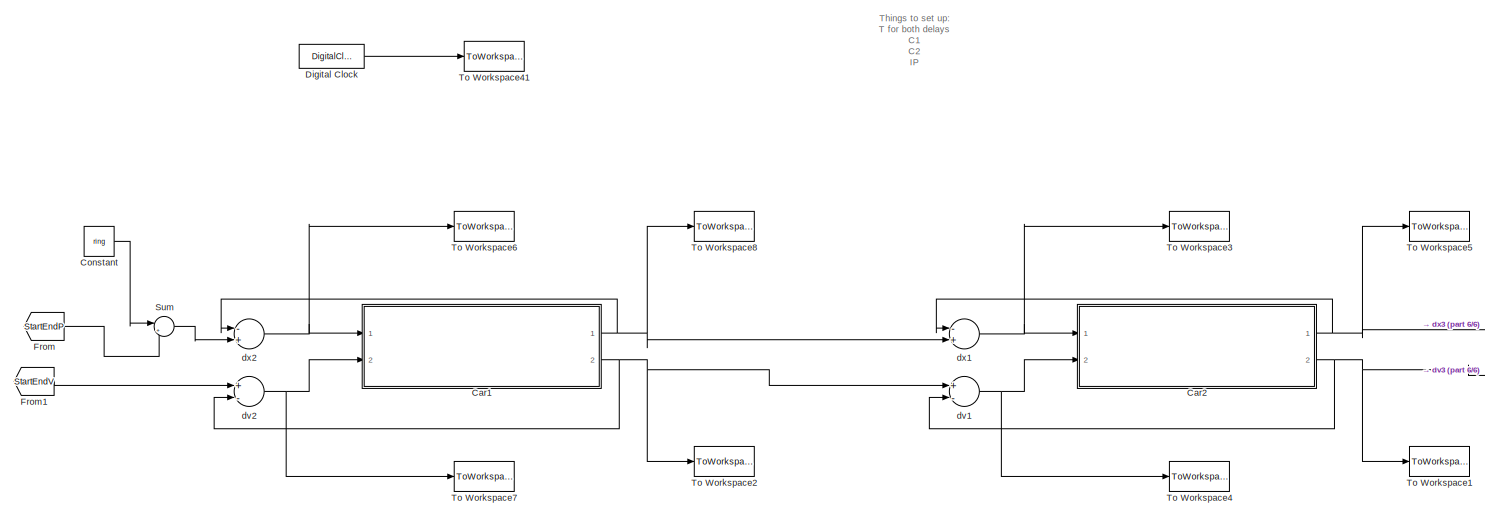
[diagram: root canvas - part 1/6, left side, full height]
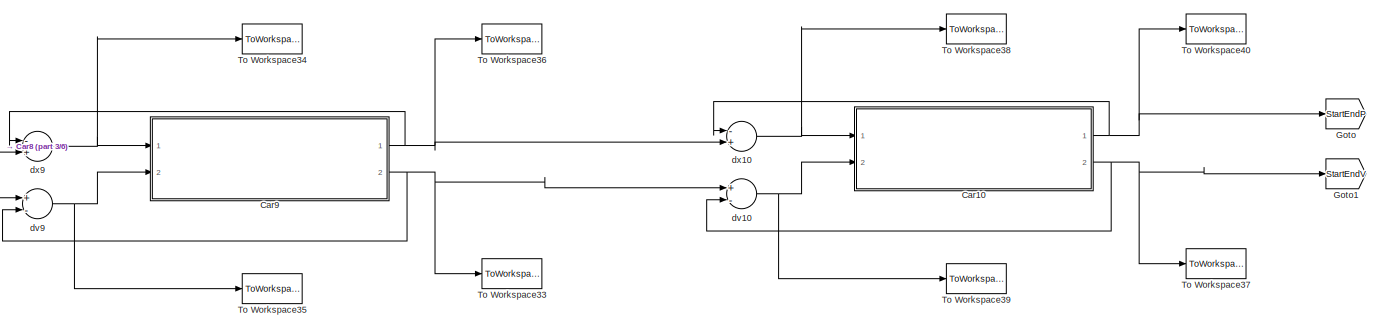
[diagram: root canvas - part 2/6, middle right region]
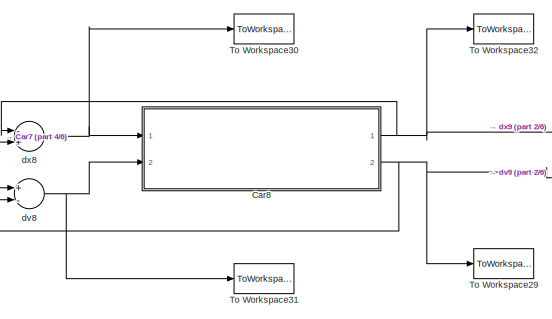
[diagram: root canvas - part 3/6, middle right region]
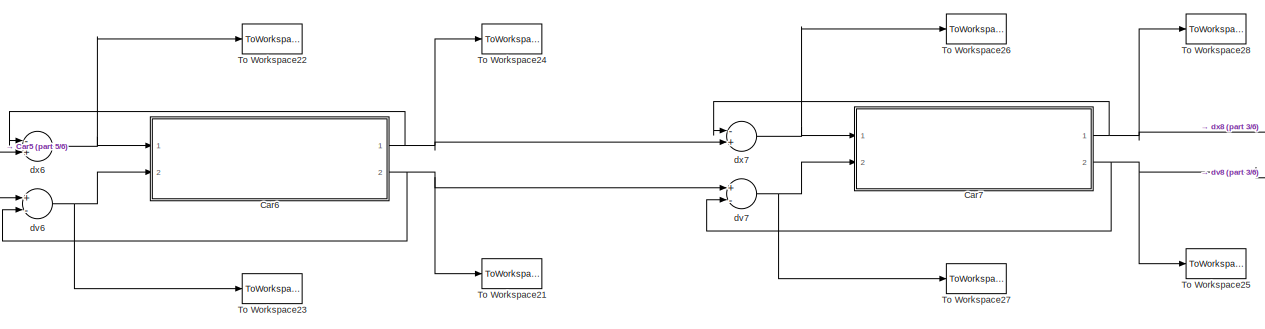
[diagram: root canvas - part 4/6, central region]
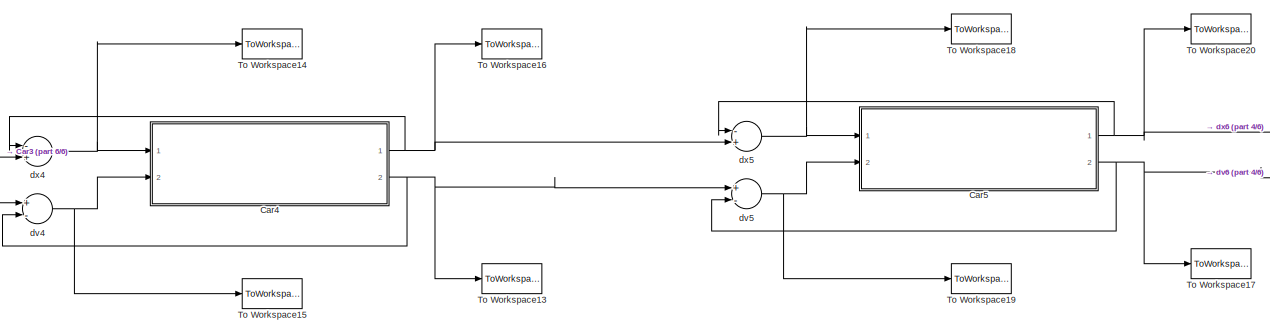
[diagram: root canvas - part 5/6, central region]
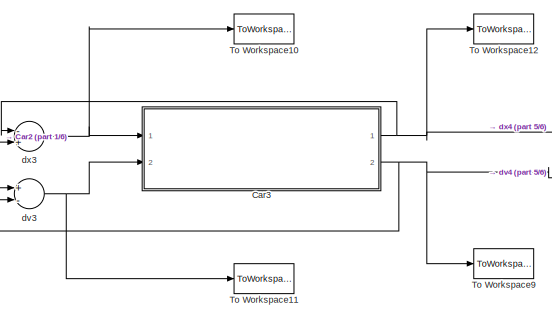
[diagram: root canvas - part 6/6, bottom left region]
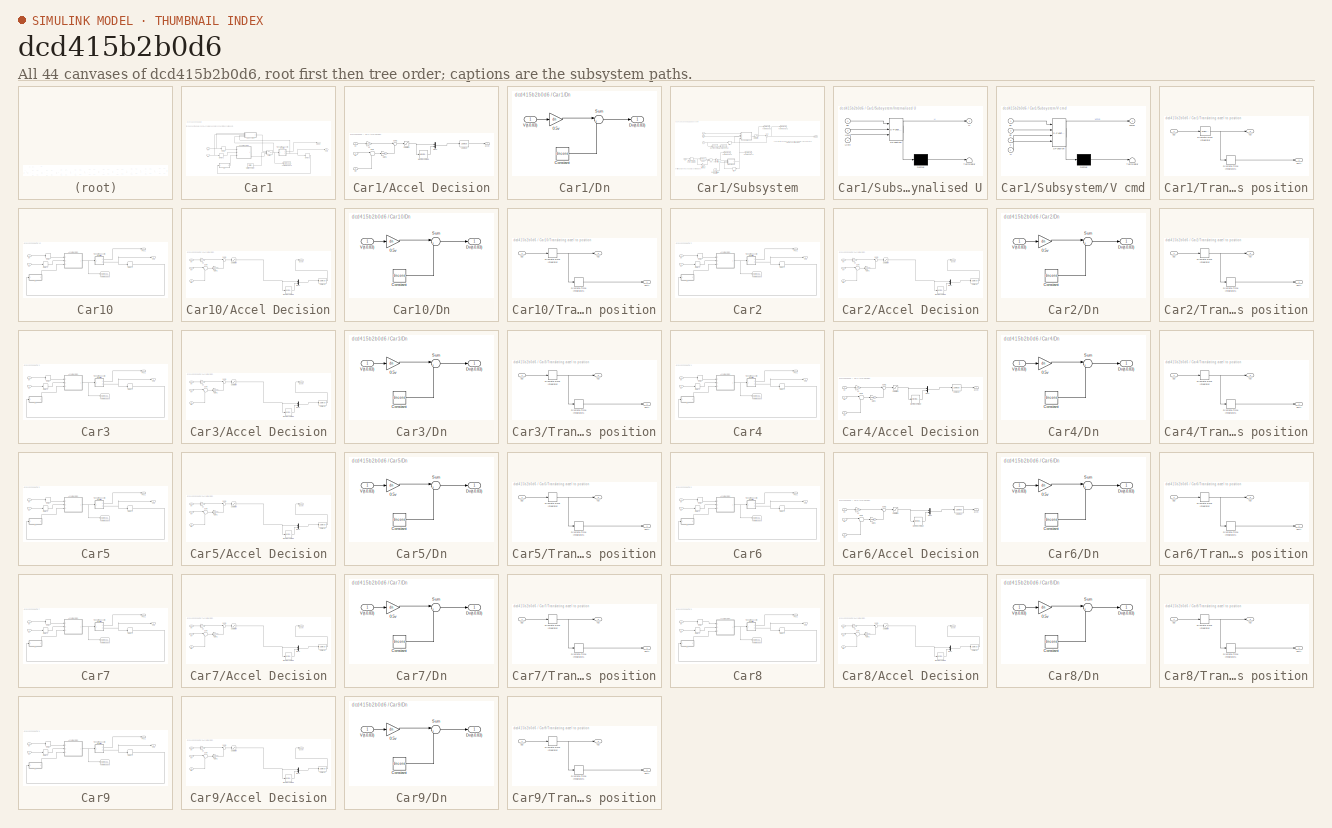
[diagram: thumbnail index - all 44 canvases of the model, root first then tree order]
MODEL slx_dcd415b2b0d6
KIND model
CONFIG AbsTol = auto
CONFIG EnableMultiTasking = off
CONFIG FixedStep = auto
CONFIG MaxStep = auto
CONFIG MinStep = auto
CONFIG RelTol = 1e-3
CONFIG SampleTimeConstraint = Unconstrained
CONFIG Solver = VariableStepAuto
CONFIG SolverName = VariableStepAuto
CONFIG StartTime = 0.0
CONFIG StopTime = runtime
BLOCK [SubSystem] Car1
  Ports = [2, 2]
  RequestExecContextInheritance = off
  Variant = off
BLOCK [SubSystem] Car1/Accel Decision
  Ports = [3, 1]
  RequestExecContextInheritance = off
  Variant = off
BLOCK [Reference] Car1/Accel Decision/2-D Mean  REF=visionstatistics/2-D Mean
  Ports = [1, 1]
  SourceBlock = visionstatistics/2-D Mean
  SourceProductBaseCode = VP
  SourceProductName = Computer Vision System Toolbox
  SourceType = 2-D Mean
  UserDataPersistent = on
BLOCK [Gain] Car1/Accel Decision/C1
  Gain = C1(1)
  OutDataTypeStr = Inherit: Inherit via internal rule
  ParamDataTypeStr = Inherit: Inherit via internal rule
  SaturateOnIntegerOverflow = off
BLOCK [Inport] Car1/Accel Decision/Dn
  IconDisplay = Port number
  Port = 3
BLOCK [Gain] Car1/Accel Decision/Gain1
  Gain = C2(1)
  OutDataTypeStr = Inherit: Inherit via internal rule
  ParamDataTypeStr = Inherit: Inherit via internal rule
  SaturateOnIntegerOverflow = off
BLOCK [Reference] Car1/Accel Decision/Moving Average  REF=dspstat3/Moving
Average
  Ports = [1, 1]
  SourceBlock = dspstat3/Moving\nAverage
  SourceProductBaseCode = DS
  SourceProductName = DSP System Toolbox
  SourceType = dsp.MovingAverage
BLOCK [Mux] Car1/Accel Decision/Mux1
  DisplayOption = bar
  Inputs = 2
  Ports = [2, 1]
BLOCK [Saturate] Car1/Accel Decision/Saturation
  InputPortMap = u0
  LowerLimit = mina
  Ports = [1, 1]
  UpperLimit = maxa
BLOCK [Sum] Car1/Accel Decision/Sum
  IconShape = round
  InputSameDT = off
  Inputs = |+-
  OutDataTypeStr = Inherit: Inherit via internal rule
  Ports = [2, 1]
  SaturateOnIntegerOverflow = off
BLOCK [Sum] Car1/Accel Decision/Sum1
  IconShape = round
  InputSameDT = off
  Inputs = |++
  OutDataTypeStr = Inherit: Inherit via internal rule
  OutMax = [3]
  Ports = [2, 1]
  SaturateOnIntegerOverflow = off
BLOCK [Outport] Car1/Accel Decision/accel
  IconDisplay = Port number
  OutMax = [3]
  SampleTime = 0.01
BLOCK [Inport] Car1/Accel Decision/dv
  IconDisplay = Port number
  Port = 2
BLOCK [Inport] Car1/Accel Decision/dx
  IconDisplay = Port number
BLOCK [Delay] Car1/Delay
  DelayLength = 343
  InitialCondition = IP(1)-IP(2)
  InputPortMap = u0
  Ports = [1, 1]
  SampleTime = 0.01
BLOCK [Delay] Car1/Delay1
  DelayLength = T(1)
  InputPortMap = u0
  Ports = [1, 1]
  SampleTime = 0.01
BLOCK [Delay] Car1/Delay2
  DelayLength = T(1)
  InputPortMap = u0
  Ports = [1, 1]
  SampleTime = 0.01
BLOCK [SubSystem] Car1/Dn
  Ports = [1, 1]
  RequestExecContextInheritance = off
  Variant = off
BLOCK [Gain] Car1/Dn/0.5v
  Gain = dn
  OutDataTypeStr = Inherit: Inherit via internal rule
  ParamDataTypeStr = Inherit: Inherit via internal rule
  SaturateOnIntegerOverflow = off
BLOCK [Constant] Car1/Dn/Constant
  Value = dncons
BLOCK [Outport] Car1/Dn/Dn(t-0.83)
  IconDisplay = Port number
BLOCK [Sum] Car1/Dn/Sum
  IconShape = round
  InputSameDT = off
  Inputs = |++
  OutDataTypeStr = Inherit: Inherit via internal rule
  Ports = [2, 1]
  SaturateOnIntegerOverflow = off
BLOCK [Inport] Car1/Dn/V(t-0.83)
  IconDisplay = Port number
BLOCK [Outport] Car1/Pos1
  IconDisplay = Port number
BLOCK [Reference] Car1/Stair Generator  REF=powerlib_meascontrol/Pulse & Signal
Generators/Stair
Generator
  Ports = [0, 1]
  SourceBlock = powerlib_meascontrol/Pulse & Signal\nGenerators/Stair\nGenerator
  SourceProductBaseCode = PS
  SourceProductName = Simscape Power Systems
  SourceType = Stair Generator
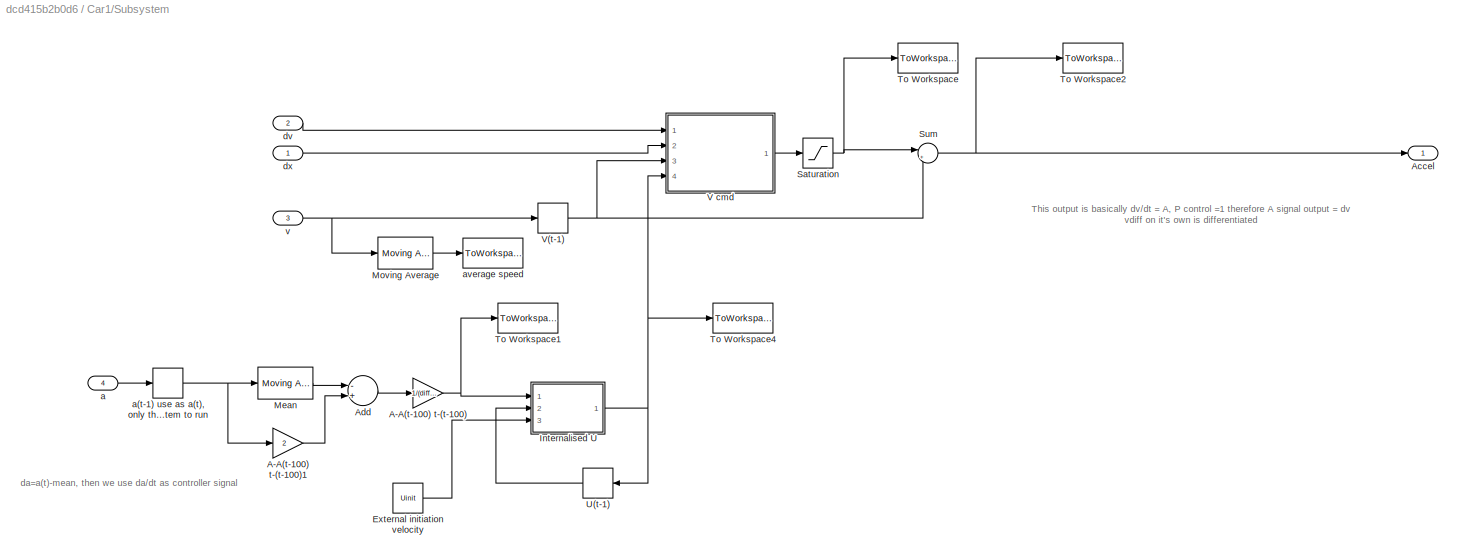
BLOCK [SubSystem] Car1/Subsystem
  Ports = [4, 1]
  RequestExecContextInheritance = off
  Variant = off
BLOCK [Gain] Car1/Subsystem/A-A(t-100) t-(t-100)
  Gain = 1/(diffscale/100)
  OutDataTypeStr = Inherit: Inherit via internal rule
  ParamDataTypeStr = Inherit: Inherit via internal rule
  SaturateOnIntegerOverflow = off
BLOCK [Gain] Car1/Subsystem/A-A(t-100) t-(t-100)1
  Gain = 2
  OutDataTypeStr = Inherit: Inherit via internal rule
  ParamDataTypeStr = Inherit: Inherit via internal rule
  SaturateOnIntegerOverflow = off
BLOCK [Outport] Car1/Subsystem/Accel
  IconDisplay = Port number
BLOCK [Sum] Car1/Subsystem/Add
  InputSameDT = off
  Inputs = -+
  OutDataTypeStr = Inherit: Inherit via internal rule
  Ports = [2, 1]
  SaturateOnIntegerOverflow = off
BLOCK [Constant] Car1/Subsystem/External initiation velocity
  Value = Uinit
BLOCK [SubSystem] Car1/Subsystem/Internalised U
  ErrorFcn = Stateflow.Translate.translate
  PermitHierarchicalResolution = ExplicitOnly
  Ports = [3, 1]
  RequestExecContextInheritance = off
  SFBlockType = MATLAB Function
  TreatAsAtomicUnit = on
  Variant = off
BLOCK [Demux] Car1/Subsystem/Internalised U/ Demux 
  Outputs = 1
  Ports = [1, 1]
BLOCK [S-Function] Car1/Subsystem/Internalised U/ SFunction 
  EnableBusSupport = on
  FunctionName = sf_sfun
  PortCounts = [3 2]
  Ports = [3, 2]
  SFcnIsStateOwnerBlock = off
  SFunctionDeploymentMode = off
  Tag = Stateflow S-Function FS10U 1
BLOCK [Terminator] Car1/Subsystem/Internalised U/ Terminator 
BLOCK [Outport] Car1/Subsystem/Internalised U/U
  IconDisplay = Port number
BLOCK [Inport] Car1/Subsystem/Internalised U/Uinit
  IconDisplay = Port number
  Port = 3
BLOCK [Inport] Car1/Subsystem/Internalised U/Uold
  IconDisplay = Port number
  Port = 2
BLOCK [Inport] Car1/Subsystem/Internalised U/da
  IconDisplay = Port number
BLOCK [Reference] Car1/Subsystem/Mean  REF=dspstat3/Moving
Average
  Ports = [1, 1]
  SourceBlock = dspstat3/Moving\nAverage
  SourceProductBaseCode = DS
  SourceProductName = DSP System Toolbox
  SourceType = dsp.MovingAverage
BLOCK [Reference] Car1/Subsystem/Moving Average  REF=dspstat3/Moving
Average
  Ports = [1, 1]
  SourceBlock = dspstat3/Moving\nAverage
  SourceProductBaseCode = DS
  SourceProductName = DSP System Toolbox
  SourceType = dsp.MovingAverage
BLOCK [Saturate] Car1/Subsystem/Saturation
  InputPortMap = u0
  LowerLimit = 0
  Ports = [1, 1]
  UpperLimit = maxv
BLOCK [Sum] Car1/Subsystem/Sum
  IconShape = round
  InputSameDT = off
  Inputs = |+-
  OutDataTypeStr = Inherit: Inherit via internal rule
  Ports = [2, 1]
  SaturateOnIntegerOverflow = off
BLOCK [ToWorkspace] Car1/Subsystem/To Workspace
  FixptAsFi = on
  MaxDataPoints = inf
  Ports = [1]
  SampleTime = 0.01
  Save2DSignal = 2-D array (concatenate along first dimension)
  VariableName = vcmd
BLOCK [ToWorkspace] Car1/Subsystem/To Workspace1
  FixptAsFi = on
  MaxDataPoints = inf
  Ports = [1]
  SampleTime = 0.01
  Save2DSignal = 2-D array (concatenate along first dimension)
  VariableName = da
BLOCK [ToWorkspace] Car1/Subsystem/To Workspace2
  FixptAsFi = on
  MaxDataPoints = inf
  Ports = [1]
  SampleTime = 0.01
  Save2DSignal = 2-D array (concatenate along first dimension)
  VariableName = vdiff
BLOCK [ToWorkspace] Car1/Subsystem/To Workspace4
  FixptAsFi = on
  MaxDataPoints = inf
  Ports = [1]
  SampleTime = 0.01
  Save2DSignal = 2-D array (concatenate along first dimension)
  VariableName = Uout
BLOCK [Memory] Car1/Subsystem/U(t-1)
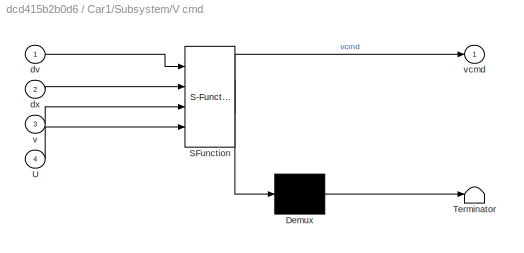
BLOCK [SubSystem] Car1/Subsystem/V cmd
  ErrorFcn = Stateflow.Translate.translate
  PermitHierarchicalResolution = ExplicitOnly
  Ports = [4, 1]
  RequestExecContextInheritance = off
  SFBlockType = MATLAB Function
  TreatAsAtomicUnit = on
  Variant = off
BLOCK [Demux] Car1/Subsystem/V cmd/ Demux 
  Outputs = 1
  Ports = [1, 1]
BLOCK [S-Function] Car1/Subsystem/V cmd/ SFunction 
  EnableBusSupport = on
  FunctionName = sf_sfun
  PortCounts = [4 2]
  Ports = [4, 2]
  SFcnIsStateOwnerBlock = off
  SFunctionDeploymentMode = off
  Tag = Stateflow S-Function FS10U 2
BLOCK [Terminator] Car1/Subsystem/V cmd/ Terminator 
BLOCK [Inport] Car1/Subsystem/V cmd/U
  IconDisplay = Port number
  Port = 4
BLOCK [Inport] Car1/Subsystem/V cmd/dv
  IconDisplay = Port number
BLOCK [Inport] Car1/Subsystem/V cmd/dx
  IconDisplay = Port number
  Port = 2
BLOCK [Inport] Car1/Subsystem/V cmd/v
  IconDisplay = Port number
  Port = 3
BLOCK [Outport] Car1/Subsystem/V cmd/vcmd
  IconDisplay = Port number
BLOCK [Memory] Car1/Subsystem/V(t-1)
BLOCK [Inport] Car1/Subsystem/a
  IconDisplay = Port number
  Port = 4
BLOCK [Memory] Car1/Subsystem/a(t-1) use as a(t), only there to allow system to run
BLOCK [ToWorkspace] Car1/Subsystem/average speed
  FixptAsFi = on
  MaxDataPoints = inf
  Ports = [1]
  SampleTime = 0.01
  Save2DSignal = 2-D array (concatenate along first dimension)
  VariableName = avg
BLOCK [Inport] Car1/Subsystem/dv 
  IconDisplay = Port number
  Port = 2
BLOCK [Inport] Car1/Subsystem/dx
  IconDisplay = Port number
BLOCK [Inport] Car1/Subsystem/v
  IconDisplay = Port number
  Port = 3
BLOCK [Switch] Car1/Switch
  Criteria = u2 > Threshold
  InputSameDT = off
  SaturateOnIntegerOverflow = off
  Threshold = 0.5
BLOCK [ToWorkspace] Car1/To Workspace
  FixptAsFi = on
  MaxDataPoints = inf
  Ports = [1]
  SampleTime = 0.01
  Save2DSignal = 3-D array (concatenate along third dimension)
  VariableName = a
BLOCK [SubSystem] Car1/Translating accel to position
  Ports = [1, 2]
  RequestExecContextInheritance = off
  Variant = off
BLOCK [DiscreteIntegrator] Car1/Translating accel to position/Discrete-Time Integrator
  ICPrevOutput = DiscIntNeverNeededParam
  ICPrevScaledInput = DiscIntNeverNeededParam
  InitialCondition = IV
  InitialConditionSetting = State (most efficient)
  LimitOutput = on
  LowerSaturationLimit = 0
  OutMax = maxv
  OutMin = 0
  Ports = [1, 1]
  SampleTime = -1
  UpperSaturationLimit = maxv
BLOCK [DiscreteIntegrator] Car1/Translating accel to position/Discrete-Time Integrator1
  ICPrevOutput = DiscIntNeverNeededParam
  ICPrevScaledInput = DiscIntNeverNeededParam
  InitialCondition = IP(1)
  InitialConditionSetting = State (most efficient)
  Ports = [1, 1]
  SampleTime = -1
BLOCK [Inport] Car1/Translating accel to position/a1t
  IconDisplay = Port number
BLOCK [Outport] Car1/Translating accel to position/p1(t)
  IconDisplay = Port number
BLOCK [Outport] Car1/Translating accel to position/v1t
  IconDisplay = Port number
  Port = 2
BLOCK [Outport] Car1/Vel1
  IconDisplay = Port number
  Port = 2
BLOCK [Inport] Car1/dv
  IconDisplay = Port number
  Port = 2
BLOCK [Inport] Car1/dx
  IconDisplay = Port number
BLOCK [SubSystem] Car10
  Ports = [2, 2]
  RequestExecContextInheritance = off
  Variant = off
BLOCK [SubSystem] Car10/Accel Decision
  Ports = [3, 1]
  RequestExecContextInheritance = off
  Variant = off
BLOCK [Reference] Car10/Accel Decision/2-D Mean  REF=visionstatistics/2-D Mean
  Ports = [1, 1]
  SourceBlock = visionstatistics/2-D Mean
  SourceProductBaseCode = VP
  SourceProductName = Computer Vision System Toolbox
  SourceType = 2-D Mean
  UserDataPersistent = on
BLOCK [Gain] Car10/Accel Decision/C1
  Gain = C1(10)
  OutDataTypeStr = Inherit: Inherit via internal rule
  ParamDataTypeStr = Inherit: Inherit via internal rule
  SaturateOnIntegerOverflow = off
BLOCK [Inport] Car10/Accel Decision/Dn
  IconDisplay = Port number
  Port = 3
BLOCK [Gain] Car10/Accel Decision/Gain1
  Gain = C2(10)
  OutDataTypeStr = Inherit: Inherit via internal rule
  ParamDataTypeStr = Inherit: Inherit via internal rule
  SaturateOnIntegerOverflow = off
BLOCK [Reference] Car10/Accel Decision/Moving Average  REF=dspstat3/Moving
Average
  Ports = [1, 1]
  SourceBlock = dspstat3/Moving\nAverage
  SourceProductBaseCode = DS
  SourceProductName = DSP System Toolbox
  SourceType = dsp.MovingAverage
BLOCK [Mux] Car10/Accel Decision/Mux1
  DisplayOption = bar
  Inputs = 2
  Ports = [2, 1]
BLOCK [Saturate] Car10/Accel Decision/Saturation
  InputPortMap = u0
  LowerLimit = mina
  Ports = [1, 1]
  UpperLimit = maxa
BLOCK [Sum] Car10/Accel Decision/Sum
  IconShape = round
  InputSameDT = off
  Inputs = |+-
  OutDataTypeStr = Inherit: Inherit via internal rule
  Ports = [2, 1]
  SaturateOnIntegerOverflow = off
BLOCK [Sum] Car10/Accel Decision/Sum1
  IconShape = round
  InputSameDT = off
  Inputs = |++
  OutDataTypeStr = Inherit: Inherit via internal rule
  OutMax = [3]
  Ports = [2, 1]
  SaturateOnIntegerOverflow = off
BLOCK [Outport] Car10/Accel Decision/accel
  IconDisplay = Port number
  OutMax = [3]
  SampleTime = 0.01
BLOCK [Inport] Car10/Accel Decision/dv
  IconDisplay = Port number
  Port = 2
BLOCK [Inport] Car10/Accel Decision/dx
  IconDisplay = Port number
BLOCK [Delay] Car10/Delay
  DelayLength = 343
  InitialCondition = IP(1)-IP(2)
  InputPortMap = u0
  Ports = [1, 1]
  SampleTime = 0.01
BLOCK [Delay] Car10/Delay1
  DelayLength = T(10)
  InputPortMap = u0
  Ports = [1, 1]
  SampleTime = 0.01
BLOCK [Delay] Car10/Delay2
  DelayLength = T(10)
  InputPortMap = u0
  Ports = [1, 1]
  SampleTime = 0.01
BLOCK [SubSystem] Car10/Dn
  Ports = [1, 1]
  RequestExecContextInheritance = off
  Variant = off
BLOCK [Gain] Car10/Dn/0.5v
  Gain = dn
  OutDataTypeStr = Inherit: Inherit via internal rule
  ParamDataTypeStr = Inherit: Inherit via internal rule
  SaturateOnIntegerOverflow = off
BLOCK [Constant] Car10/Dn/Constant
  Value = dncons
BLOCK [Outport] Car10/Dn/Dn(t-0.83)
  IconDisplay = Port number
BLOCK [Sum] Car10/Dn/Sum
  IconShape = round
  InputSameDT = off
  Inputs = |++
  OutDataTypeStr = Inherit: Inherit via internal rule
  Ports = [2, 1]
  SaturateOnIntegerOverflow = off
BLOCK [Inport] Car10/Dn/V(t-0.83)
  IconDisplay = Port number
BLOCK [Outport] Car10/Pos1
  IconDisplay = Port number
BLOCK [ToWorkspace] Car10/To Workspace
  FixptAsFi = on
  MaxDataPoints = inf
  Ports = [1]
  SampleTime = -1
  Save2DSignal = 3-D array (concatenate along third dimension)
  VariableName = a10
BLOCK [SubSystem] Car10/Translating accel to position
  Ports = [1, 2]
  RequestExecContextInheritance = off
  Variant = off
BLOCK [DiscreteIntegrator] Car10/Translating accel to position/Discrete-Time Integrator
  ICPrevOutput = DiscIntNeverNeededParam
  ICPrevScaledInput = DiscIntNeverNeededParam
  InitialCondition = IV
  InitialConditionSetting = State (most efficient)
  LimitOutput = on
  LowerSaturationLimit = 0
  OutMax = maxv
  OutMin = 0
  Ports = [1, 1]
  SampleTime = -1
  UpperSaturationLimit = maxv
BLOCK [DiscreteIntegrator] Car10/Translating accel to position/Discrete-Time Integrator1
  ICPrevOutput = DiscIntNeverNeededParam
  ICPrevScaledInput = DiscIntNeverNeededParam
  InitialCondition = IP(10)
  InitialConditionSetting = State (most efficient)
  Ports = [1, 1]
  SampleTime = -1
BLOCK [Inport] Car10/Translating accel to position/a1t
  IconDisplay = Port number
BLOCK [Outport] Car10/Translating accel to position/p1(t)
  IconDisplay = Port number
BLOCK [Outport] Car10/Translating accel to position/v1t
  IconDisplay = Port number
  Port = 2
BLOCK [Outport] Car10/Vel1
  IconDisplay = Port number
  Port = 2
BLOCK [Inport] Car10/dv
  IconDisplay = Port number
  Port = 2
BLOCK [Inport] Car10/dx
  IconDisplay = Port number
BLOCK [SubSystem] Car2
  Ports = [2, 2]
  RequestExecContextInheritance = off
  Variant = off
BLOCK [SubSystem] Car2/Accel Decision
  Ports = [3, 1]
  RequestExecContextInheritance = off
  Variant = off
BLOCK [Reference] Car2/Accel Decision/2-D Mean  REF=visionstatistics/2-D Mean
  Ports = [1, 1]
  SourceBlock = visionstatistics/2-D Mean
  SourceProductBaseCode = VP
  SourceProductName = Computer Vision System Toolbox
  SourceType = 2-D Mean
  UserDataPersistent = on
BLOCK [Gain] Car2/Accel Decision/C1
  Gain = C1(2)
  OutDataTypeStr = Inherit: Inherit via internal rule
  ParamDataTypeStr = Inherit: Inherit via internal rule
  SaturateOnIntegerOverflow = off
BLOCK [Inport] Car2/Accel Decision/Dn
  IconDisplay = Port number
  Port = 3
BLOCK [Gain] Car2/Accel Decision/Gain1
  Gain = C2(2)
  OutDataTypeStr = Inherit: Inherit via internal rule
  ParamDataTypeStr = Inherit: Inherit via internal rule
  SaturateOnIntegerOverflow = off
BLOCK [Reference] Car2/Accel Decision/Moving Average  REF=dspstat3/Moving
Average
  Ports = [1, 1]
  SourceBlock = dspstat3/Moving\nAverage
  SourceProductBaseCode = DS
  SourceProductName = DSP System Toolbox
  SourceType = dsp.MovingAverage
BLOCK [Mux] Car2/Accel Decision/Mux1
  DisplayOption = bar
  Inputs = 2
  Ports = [2, 1]
BLOCK [Saturate] Car2/Accel Decision/Saturation
  InputPortMap = u0
  LowerLimit = mina
  Ports = [1, 1]
  UpperLimit = maxa
BLOCK [Sum] Car2/Accel Decision/Sum
  IconShape = round
  InputSameDT = off
  Inputs = |+-
  OutDataTypeStr = Inherit: Inherit via internal rule
  Ports = [2, 1]
  SaturateOnIntegerOverflow = off
BLOCK [Sum] Car2/Accel Decision/Sum1
  IconShape = round
  InputSameDT = off
  Inputs = |++
  OutDataTypeStr = Inherit: Inherit via internal rule
  OutMax = [3]
  Ports = [2, 1]
  SaturateOnIntegerOverflow = off
BLOCK [Outport] Car2/Accel Decision/accel
  IconDisplay = Port number
  OutMax = [3]
  SampleTime = 0.01
BLOCK [Inport] Car2/Accel Decision/dv
  IconDisplay = Port number
  Port = 2
BLOCK [Inport] Car2/Accel Decision/dx
  IconDisplay = Port number
BLOCK [Delay] Car2/Delay
  DelayLength = 343
  InitialCondition = IP(1)-IP(2)
  InputPortMap = u0
  Ports = [1, 1]
  SampleTime = 0.01
BLOCK [Delay] Car2/Delay1
  DelayLength = T(2)
  InputPortMap = u0
  Ports = [1, 1]
  SampleTime = 0.01
BLOCK [Delay] Car2/Delay2
  DelayLength = T(2)
  InputPortMap = u0
  Ports = [1, 1]
  SampleTime = 0.01
BLOCK [SubSystem] Car2/Dn
  Ports = [1, 1]
  RequestExecContextInheritance = off
  Variant = off
BLOCK [Gain] Car2/Dn/0.5v
  Gain = dn
  OutDataTypeStr = Inherit: Inherit via internal rule
  ParamDataTypeStr = Inherit: Inherit via internal rule
  SaturateOnIntegerOverflow = off
BLOCK [Constant] Car2/Dn/Constant
  Value = dncons
BLOCK [Outport] Car2/Dn/Dn(t-0.83)
  IconDisplay = Port number
BLOCK [Sum] Car2/Dn/Sum
  IconShape = round
  InputSameDT = off
  Inputs = |++
  OutDataTypeStr = Inherit: Inherit via internal rule
  Ports = [2, 1]
  SaturateOnIntegerOverflow = off
BLOCK [Inport] Car2/Dn/V(t-0.83)
  IconDisplay = Port number
BLOCK [Outport] Car2/Pos1
  IconDisplay = Port number
BLOCK [ToWorkspace] Car2/To Workspace
  FixptAsFi = on
  MaxDataPoints = inf
  Ports = [1]
  SampleTime = -1
  Save2DSignal = 3-D array (concatenate along third dimension)
  VariableName = a2
BLOCK [SubSystem] Car2/Translating accel to position
  Ports = [1, 2]
  RequestExecContextInheritance = off
  Variant = off
BLOCK [DiscreteIntegrator] Car2/Translating accel to position/Discrete-Time Integrator
  ICPrevOutput = DiscIntNeverNeededParam
  ICPrevScaledInput = DiscIntNeverNeededParam
  InitialCondition = IV
  InitialConditionSetting = State (most efficient)
  LimitOutput = on
  LowerSaturationLimit = 0
  OutMax = maxv
  OutMin = 0
  Ports = [1, 1]
  SampleTime = -1
  UpperSaturationLimit = maxv
BLOCK [DiscreteIntegrator] Car2/Translating accel to position/Discrete-Time Integrator1
  ICPrevOutput = DiscIntNeverNeededParam
  ICPrevScaledInput = DiscIntNeverNeededParam
  InitialCondition = IP(2)
  InitialConditionSetting = State (most efficient)
  Ports = [1, 1]
  SampleTime = -1
BLOCK [Inport] Car2/Translating accel to position/a1t
  IconDisplay = Port number
BLOCK [Outport] Car2/Translating accel to position/p1(t)
  IconDisplay = Port number
BLOCK [Outport] Car2/Translating accel to position/v1t
  IconDisplay = Port number
  Port = 2
BLOCK [Outport] Car2/Vel1
  IconDisplay = Port number
  Port = 2
BLOCK [Inport] Car2/dv
  IconDisplay = Port number
  Port = 2
BLOCK [Inport] Car2/dx
  IconDisplay = Port number
BLOCK [SubSystem] Car3
  Ports = [2, 2]
  RequestExecContextInheritance = off
  Variant = off
BLOCK [SubSystem] Car3/Accel Decision
  Ports = [3, 1]
  RequestExecContextInheritance = off
  Variant = off
BLOCK [Reference] Car3/Accel Decision/2-D Mean  REF=visionstatistics/2-D Mean
  Ports = [1, 1]
  SourceBlock = visionstatistics/2-D Mean
  SourceProductBaseCode = VP
  SourceProductName = Computer Vision System Toolbox
  SourceType = 2-D Mean
  UserDataPersistent = on
BLOCK [Gain] Car3/Accel Decision/C1
  Gain = C1(3)
  OutDataTypeStr = Inherit: Inherit via internal rule
  ParamDataTypeStr = Inherit: Inherit via internal rule
  SaturateOnIntegerOverflow = off
BLOCK [Inport] Car3/Accel Decision/Dn
  IconDisplay = Port number
  Port = 3
BLOCK [Gain] Car3/Accel Decision/Gain1
  Gain = C2(3)
  OutDataTypeStr = Inherit: Inherit via internal rule
  ParamDataTypeStr = Inherit: Inherit via internal rule
  SaturateOnIntegerOverflow = off
BLOCK [Reference] Car3/Accel Decision/Moving Average  REF=dspstat3/Moving
Average
  Ports = [1, 1]
  SourceBlock = dspstat3/Moving\nAverage
  SourceProductBaseCode = DS
  SourceProductName = DSP System Toolbox
  SourceType = dsp.MovingAverage
BLOCK [Mux] Car3/Accel Decision/Mux1
  DisplayOption = bar
  Inputs = 2
  Ports = [2, 1]
BLOCK [Saturate] Car3/Accel Decision/Saturation
  InputPortMap = u0
  LowerLimit = mina
  Ports = [1, 1]
  UpperLimit = maxa
BLOCK [Sum] Car3/Accel Decision/Sum
  IconShape = round
  InputSameDT = off
  Inputs = |+-
  OutDataTypeStr = Inherit: Inherit via internal rule
  Ports = [2, 1]
  SaturateOnIntegerOverflow = off
BLOCK [Sum] Car3/Accel Decision/Sum1
  IconShape = round
  InputSameDT = off
  Inputs = |++
  OutDataTypeStr = Inherit: Inherit via internal rule
  OutMax = [3]
  Ports = [2, 1]
  SaturateOnIntegerOverflow = off
BLOCK [Outport] Car3/Accel Decision/accel
  IconDisplay = Port number
  OutMax = [3]
  SampleTime = 0.01
BLOCK [Inport] Car3/Accel Decision/dv
  IconDisplay = Port number
  Port = 2
BLOCK [Inport] Car3/Accel Decision/dx
  IconDisplay = Port number
BLOCK [Delay] Car3/Delay
  DelayLength = 343
  InitialCondition = IP(1)-IP(2)
  InputPortMap = u0
  Ports = [1, 1]
  SampleTime = 0.01
BLOCK [Delay] Car3/Delay1
  DelayLength = T(3)
  InputPortMap = u0
  Ports = [1, 1]
  SampleTime = 0.01
BLOCK [Delay] Car3/Delay2
  DelayLength = T(3)
  InputPortMap = u0
  Ports = [1, 1]
  SampleTime = 0.01
BLOCK [SubSystem] Car3/Dn
  Ports = [1, 1]
  RequestExecContextInheritance = off
  Variant = off
BLOCK [Gain] Car3/Dn/0.5v
  Gain = dn
  OutDataTypeStr = Inherit: Inherit via internal rule
  ParamDataTypeStr = Inherit: Inherit via internal rule
  SaturateOnIntegerOverflow = off
BLOCK [Constant] Car3/Dn/Constant
  Value = dncons
BLOCK [Outport] Car3/Dn/Dn(t-0.83)
  IconDisplay = Port number
BLOCK [Sum] Car3/Dn/Sum
  IconShape = round
  InputSameDT = off
  Inputs = |++
  OutDataTypeStr = Inherit: Inherit via internal rule
  Ports = [2, 1]
  SaturateOnIntegerOverflow = off
BLOCK [Inport] Car3/Dn/V(t-0.83)
  IconDisplay = Port number
BLOCK [Outport] Car3/Pos1
  IconDisplay = Port number
BLOCK [ToWorkspace] Car3/To Workspace
  FixptAsFi = on
  MaxDataPoints = inf
  Ports = [1]
  SampleTime = -1
  Save2DSignal = 3-D array (concatenate along third dimension)
  VariableName = a3
BLOCK [SubSystem] Car3/Translating accel to position
  Ports = [1, 2]
  RequestExecContextInheritance = off
  Variant = off
BLOCK [DiscreteIntegrator] Car3/Translating accel to position/Discrete-Time Integrator
  ICPrevOutput = DiscIntNeverNeededParam
  ICPrevScaledInput = DiscIntNeverNeededParam
  InitialCondition = IV
  InitialConditionSetting = State (most efficient)
  LimitOutput = on
  LowerSaturationLimit = 0
  OutMax = maxv
  OutMin = 0
  Ports = [1, 1]
  SampleTime = -1
  UpperSaturationLimit = maxv
BLOCK [DiscreteIntegrator] Car3/Translating accel to position/Discrete-Time Integrator1
  ICPrevOutput = DiscIntNeverNeededParam
  ICPrevScaledInput = DiscIntNeverNeededParam
  InitialCondition = IP(3)
  InitialConditionSetting = State (most efficient)
  Ports = [1, 1]
  SampleTime = -1
BLOCK [Inport] Car3/Translating accel to position/a1t
  IconDisplay = Port number
BLOCK [Outport] Car3/Translating accel to position/p1(t)
  IconDisplay = Port number
BLOCK [Outport] Car3/Translating accel to position/v1t
  IconDisplay = Port number
  Port = 2
BLOCK [Outport] Car3/Vel1
  IconDisplay = Port number
  Port = 2
BLOCK [Inport] Car3/dv
  IconDisplay = Port number
  Port = 2
BLOCK [Inport] Car3/dx
  IconDisplay = Port number
BLOCK [SubSystem] Car4
  Ports = [2, 2]
  RequestExecContextInheritance = off
  Variant = off
BLOCK [SubSystem] Car4/Accel Decision
  Ports = [3, 1]
  RequestExecContextInheritance = off
  Variant = off
BLOCK [Reference] Car4/Accel Decision/2-D Mean  REF=visionstatistics/2-D Mean
  Ports = [1, 1]
  SourceBlock = visionstatistics/2-D Mean
  SourceProductBaseCode = VP
  SourceProductName = Computer Vision System Toolbox
  SourceType = 2-D Mean
  UserDataPersistent = on
BLOCK [Gain] Car4/Accel Decision/C1
  Gain = C1(4)
  OutDataTypeStr = Inherit: Inherit via internal rule
  ParamDataTypeStr = Inherit: Inherit via internal rule
  SaturateOnIntegerOverflow = off
BLOCK [Inport] Car4/Accel Decision/Dn
  IconDisplay = Port number
  Port = 3
BLOCK [Gain] Car4/Accel Decision/Gain1
  Gain = C2(4)
  OutDataTypeStr = Inherit: Inherit via internal rule
  ParamDataTypeStr = Inherit: Inherit via internal rule
  SaturateOnIntegerOverflow = off
BLOCK [Reference] Car4/Accel Decision/Moving Average  REF=dspstat3/Moving
Average
  Ports = [1, 1]
  SourceBlock = dspstat3/Moving\nAverage
  SourceProductBaseCode = DS
  SourceProductName = DSP System Toolbox
  SourceType = dsp.MovingAverage
BLOCK [Mux] Car4/Accel Decision/Mux1
  DisplayOption = bar
  Inputs = 2
  Ports = [2, 1]
BLOCK [Saturate] Car4/Accel Decision/Saturation
  InputPortMap = u0
  LowerLimit = mina
  Ports = [1, 1]
  UpperLimit = maxa
BLOCK [Sum] Car4/Accel Decision/Sum
  IconShape = round
  InputSameDT = off
  Inputs = |+-
  OutDataTypeStr = Inherit: Inherit via internal rule
  Ports = [2, 1]
  SaturateOnIntegerOverflow = off
BLOCK [Sum] Car4/Accel Decision/Sum1
  IconShape = round
  InputSameDT = off
  Inputs = |++
  OutDataTypeStr = Inherit: Inherit via internal rule
  OutMax = [3]
  Ports = [2, 1]
  SaturateOnIntegerOverflow = off
BLOCK [Outport] Car4/Accel Decision/accel
  IconDisplay = Port number
  OutMax = [3]
  SampleTime = 0.01
BLOCK [Inport] Car4/Accel Decision/dv
  IconDisplay = Port number
  Port = 2
BLOCK [Inport] Car4/Accel Decision/dx
  IconDisplay = Port number
BLOCK [Delay] Car4/Delay
  DelayLength = 343
  InitialCondition = IP(1)-IP(2)
  InputPortMap = u0
  Ports = [1, 1]
  SampleTime = 0.01
BLOCK [Delay] Car4/Delay1
  DelayLength = T(4)
  InputPortMap = u0
  Ports = [1, 1]
  SampleTime = 0.01
BLOCK [Delay] Car4/Delay2
  DelayLength = T(4)
  InputPortMap = u0
  Ports = [1, 1]
  SampleTime = 0.01
BLOCK [SubSystem] Car4/Dn
  Ports = [1, 1]
  RequestExecContextInheritance = off
  Variant = off
BLOCK [Gain] Car4/Dn/0.5v
  Gain = dn
  OutDataTypeStr = Inherit: Inherit via internal rule
  ParamDataTypeStr = Inherit: Inherit via internal rule
  SaturateOnIntegerOverflow = off
BLOCK [Constant] Car4/Dn/Constant
  Value = dncons
BLOCK [Outport] Car4/Dn/Dn(t-0.83)
  IconDisplay = Port number
BLOCK [Sum] Car4/Dn/Sum
  IconShape = round
  InputSameDT = off
  Inputs = |++
  OutDataTypeStr = Inherit: Inherit via internal rule
  Ports = [2, 1]
  SaturateOnIntegerOverflow = off
BLOCK [Inport] Car4/Dn/V(t-0.83)
  IconDisplay = Port number
BLOCK [Outport] Car4/Pos1
  IconDisplay = Port number
BLOCK [ToWorkspace] Car4/To Workspace
  FixptAsFi = on
  MaxDataPoints = inf
  Ports = [1]
  SampleTime = -1
  Save2DSignal = 3-D array (concatenate along third dimension)
  VariableName = a4
BLOCK [SubSystem] Car4/Translating accel to position
  Ports = [1, 2]
  RequestExecContextInheritance = off
  Variant = off
BLOCK [DiscreteIntegrator] Car4/Translating accel to position/Discrete-Time Integrator
  ICPrevOutput = DiscIntNeverNeededParam
  ICPrevScaledInput = DiscIntNeverNeededParam
  InitialCondition = IV
  InitialConditionSetting = State (most efficient)
  LimitOutput = on
  LowerSaturationLimit = 0
  OutMax = maxv
  OutMin = 0
  Ports = [1, 1]
  SampleTime = -1
  UpperSaturationLimit = maxv
BLOCK [DiscreteIntegrator] Car4/Translating accel to position/Discrete-Time Integrator1
  ICPrevOutput = DiscIntNeverNeededParam
  ICPrevScaledInput = DiscIntNeverNeededParam
  InitialCondition = IP(4)
  InitialConditionSetting = State (most efficient)
  Ports = [1, 1]
  SampleTime = -1
BLOCK [Inport] Car4/Translating accel to position/a1t
  IconDisplay = Port number
BLOCK [Outport] Car4/Translating accel to position/p1(t)
  IconDisplay = Port number
BLOCK [Outport] Car4/Translating accel to position/v1t
  IconDisplay = Port number
  Port = 2
BLOCK [Outport] Car4/Vel1
  IconDisplay = Port number
  Port = 2
BLOCK [Inport] Car4/dv
  IconDisplay = Port number
  Port = 2
BLOCK [Inport] Car4/dx
  IconDisplay = Port number
BLOCK [SubSystem] Car5
  Ports = [2, 2]
  RequestExecContextInheritance = off
  Variant = off
BLOCK [SubSystem] Car5/Accel Decision
  Ports = [3, 1]
  RequestExecContextInheritance = off
  Variant = off
BLOCK [Reference] Car5/Accel Decision/2-D Mean  REF=visionstatistics/2-D Mean
  Ports = [1, 1]
  SourceBlock = visionstatistics/2-D Mean
  SourceProductBaseCode = VP
  SourceProductName = Computer Vision System Toolbox
  SourceType = 2-D Mean
  UserDataPersistent = on
BLOCK [Gain] Car5/Accel Decision/C1
  Gain = C1(5)
  OutDataTypeStr = Inherit: Inherit via internal rule
  ParamDataTypeStr = Inherit: Inherit via internal rule
  SaturateOnIntegerOverflow = off
BLOCK [Inport] Car5/Accel Decision/Dn
  IconDisplay = Port number
  Port = 3
BLOCK [Gain] Car5/Accel Decision/Gain1
  Gain = C2(5)
  OutDataTypeStr = Inherit: Inherit via internal rule
  ParamDataTypeStr = Inherit: Inherit via internal rule
  SaturateOnIntegerOverflow = off
BLOCK [Reference] Car5/Accel Decision/Moving Average  REF=dspstat3/Moving
Average
  Ports = [1, 1]
  SourceBlock = dspstat3/Moving\nAverage
  SourceProductBaseCode = DS
  SourceProductName = DSP System Toolbox
  SourceType = dsp.MovingAverage
BLOCK [Mux] Car5/Accel Decision/Mux1
  DisplayOption = bar
  Inputs = 2
  Ports = [2, 1]
BLOCK [Saturate] Car5/Accel Decision/Saturation
  InputPortMap = u0
  LowerLimit = mina
  Ports = [1, 1]
  UpperLimit = maxa
BLOCK [Sum] Car5/Accel Decision/Sum
  IconShape = round
  InputSameDT = off
  Inputs = |+-
  OutDataTypeStr = Inherit: Inherit via internal rule
  Ports = [2, 1]
  SaturateOnIntegerOverflow = off
BLOCK [Sum] Car5/Accel Decision/Sum1
  IconShape = round
  InputSameDT = off
  Inputs = |++
  OutDataTypeStr = Inherit: Inherit via internal rule
  OutMax = [3]
  Ports = [2, 1]
  SaturateOnIntegerOverflow = off
BLOCK [Outport] Car5/Accel Decision/accel
  IconDisplay = Port number
  OutMax = [3]
  SampleTime = 0.01
BLOCK [Inport] Car5/Accel Decision/dv
  IconDisplay = Port number
  Port = 2
BLOCK [Inport] Car5/Accel Decision/dx
  IconDisplay = Port number
BLOCK [Delay] Car5/Delay
  DelayLength = 343
  InitialCondition = IP(1)-IP(2)
  InputPortMap = u0
  Ports = [1, 1]
  SampleTime = 0.01
BLOCK [Delay] Car5/Delay1
  DelayLength = T(5)
  InputPortMap = u0
  Ports = [1, 1]
  SampleTime = 0.01
BLOCK [Delay] Car5/Delay2
  DelayLength = T(5)
  InputPortMap = u0
  Ports = [1, 1]
  SampleTime = 0.01
BLOCK [SubSystem] Car5/Dn
  Ports = [1, 1]
  RequestExecContextInheritance = off
  Variant = off
BLOCK [Gain] Car5/Dn/0.5v
  Gain = dn
  OutDataTypeStr = Inherit: Inherit via internal rule
  ParamDataTypeStr = Inherit: Inherit via internal rule
  SaturateOnIntegerOverflow = off
BLOCK [Constant] Car5/Dn/Constant
  Value = dncons
BLOCK [Outport] Car5/Dn/Dn(t-0.83)
  IconDisplay = Port number
BLOCK [Sum] Car5/Dn/Sum
  IconShape = round
  InputSameDT = off
  Inputs = |++
  OutDataTypeStr = Inherit: Inherit via internal rule
  Ports = [2, 1]
  SaturateOnIntegerOverflow = off
BLOCK [Inport] Car5/Dn/V(t-0.83)
  IconDisplay = Port number
BLOCK [Outport] Car5/Pos1
  IconDisplay = Port number
BLOCK [ToWorkspace] Car5/To Workspace
  FixptAsFi = on
  MaxDataPoints = inf
  Ports = [1]
  SampleTime = -1
  Save2DSignal = 3-D array (concatenate along third dimension)
  VariableName = a5
BLOCK [SubSystem] Car5/Translating accel to position
  Ports = [1, 2]
  RequestExecContextInheritance = off
  Variant = off
BLOCK [DiscreteIntegrator] Car5/Translating accel to position/Discrete-Time Integrator
  ICPrevOutput = DiscIntNeverNeededParam
  ICPrevScaledInput = DiscIntNeverNeededParam
  InitialCondition = IV
  InitialConditionSetting = State (most efficient)
  LimitOutput = on
  LowerSaturationLimit = 0
  OutMax = maxv
  OutMin = 0
  Ports = [1, 1]
  SampleTime = -1
  UpperSaturationLimit = maxv
BLOCK [DiscreteIntegrator] Car5/Translating accel to position/Discrete-Time Integrator1
  ICPrevOutput = DiscIntNeverNeededParam
  ICPrevScaledInput = DiscIntNeverNeededParam
  InitialCondition = IP(5)
  InitialConditionSetting = State (most efficient)
  Ports = [1, 1]
  SampleTime = -1
BLOCK [Inport] Car5/Translating accel to position/a1t
  IconDisplay = Port number
BLOCK [Outport] Car5/Translating accel to position/p1(t)
  IconDisplay = Port number
BLOCK [Outport] Car5/Translating accel to position/v1t
  IconDisplay = Port number
  Port = 2
BLOCK [Outport] Car5/Vel1
  IconDisplay = Port number
  Port = 2
BLOCK [Inport] Car5/dv
  IconDisplay = Port number
  Port = 2
BLOCK [Inport] Car5/dx
  IconDisplay = Port number
BLOCK [SubSystem] Car6
  Ports = [2, 2]
  RequestExecContextInheritance = off
  Variant = off
BLOCK [SubSystem] Car6/Accel Decision
  Ports = [3, 1]
  RequestExecContextInheritance = off
  Variant = off
BLOCK [Reference] Car6/Accel Decision/2-D Mean  REF=visionstatistics/2-D Mean
  Ports = [1, 1]
  SourceBlock = visionstatistics/2-D Mean
  SourceProductBaseCode = VP
  SourceProductName = Computer Vision System Toolbox
  SourceType = 2-D Mean
  UserDataPersistent = on
BLOCK [Gain] Car6/Accel Decision/C1
  Gain = C1(6)
  OutDataTypeStr = Inherit: Inherit via internal rule
  ParamDataTypeStr = Inherit: Inherit via internal rule
  SaturateOnIntegerOverflow = off
BLOCK [Inport] Car6/Accel Decision/Dn
  IconDisplay = Port number
  Port = 3
BLOCK [Gain] Car6/Accel Decision/Gain1
  Gain = C2(6)
  OutDataTypeStr = Inherit: Inherit via internal rule
  ParamDataTypeStr = Inherit: Inherit via internal rule
  SaturateOnIntegerOverflow = off
BLOCK [Reference] Car6/Accel Decision/Moving Average  REF=dspstat3/Moving
Average
  Ports = [1, 1]
  SourceBlock = dspstat3/Moving\nAverage
  SourceProductBaseCode = DS
  SourceProductName = DSP System Toolbox
  SourceType = dsp.MovingAverage
BLOCK [Mux] Car6/Accel Decision/Mux1
  DisplayOption = bar
  Inputs = 2
  Ports = [2, 1]
BLOCK [Saturate] Car6/Accel Decision/Saturation
  InputPortMap = u0
  LowerLimit = mina
  Ports = [1, 1]
  UpperLimit = maxa
BLOCK [Sum] Car6/Accel Decision/Sum
  IconShape = round
  InputSameDT = off
  Inputs = |+-
  OutDataTypeStr = Inherit: Inherit via internal rule
  Ports = [2, 1]
  SaturateOnIntegerOverflow = off
BLOCK [Sum] Car6/Accel Decision/Sum1
  IconShape = round
  InputSameDT = off
  Inputs = |++
  OutDataTypeStr = Inherit: Inherit via internal rule
  OutMax = [3]
  Ports = [2, 1]
  SaturateOnIntegerOverflow = off
BLOCK [Outport] Car6/Accel Decision/accel
  IconDisplay = Port number
  OutMax = [3]
  SampleTime = 0.01
BLOCK [Inport] Car6/Accel Decision/dv
  IconDisplay = Port number
  Port = 2
BLOCK [Inport] Car6/Accel Decision/dx
  IconDisplay = Port number
BLOCK [Delay] Car6/Delay
  DelayLength = 343
  InitialCondition = IP(1)-IP(2)
  InputPortMap = u0
  Ports = [1, 1]
  SampleTime = 0.01
BLOCK [Delay] Car6/Delay1
  DelayLength = T(6)
  InputPortMap = u0
  Ports = [1, 1]
  SampleTime = 0.01
BLOCK [Delay] Car6/Delay2
  DelayLength = T(6)
  InputPortMap = u0
  Ports = [1, 1]
  SampleTime = 0.01
BLOCK [SubSystem] Car6/Dn
  Ports = [1, 1]
  RequestExecContextInheritance = off
  Variant = off
BLOCK [Gain] Car6/Dn/0.5v
  Gain = dn
  OutDataTypeStr = Inherit: Inherit via internal rule
  ParamDataTypeStr = Inherit: Inherit via internal rule
  SaturateOnIntegerOverflow = off
BLOCK [Constant] Car6/Dn/Constant
  Value = dncons
BLOCK [Outport] Car6/Dn/Dn(t-0.83)
  IconDisplay = Port number
BLOCK [Sum] Car6/Dn/Sum
  IconShape = round
  InputSameDT = off
  Inputs = |++
  OutDataTypeStr = Inherit: Inherit via internal rule
  Ports = [2, 1]
  SaturateOnIntegerOverflow = off
BLOCK [Inport] Car6/Dn/V(t-0.83)
  IconDisplay = Port number
BLOCK [Outport] Car6/Pos1
  IconDisplay = Port number
BLOCK [ToWorkspace] Car6/To Workspace
  FixptAsFi = on
  MaxDataPoints = inf
  Ports = [1]
  SampleTime = -1
  Save2DSignal = 3-D array (concatenate along third dimension)
  VariableName = a6
BLOCK [SubSystem] Car6/Translating accel to position
  Ports = [1, 2]
  RequestExecContextInheritance = off
  Variant = off
BLOCK [DiscreteIntegrator] Car6/Translating accel to position/Discrete-Time Integrator
  ICPrevOutput = DiscIntNeverNeededParam
  ICPrevScaledInput = DiscIntNeverNeededParam
  InitialCondition = IV
  InitialConditionSetting = State (most efficient)
  LimitOutput = on
  LowerSaturationLimit = 0
  OutMax = maxv
  OutMin = 0
  Ports = [1, 1]
  SampleTime = -1
  UpperSaturationLimit = maxv
BLOCK [DiscreteIntegrator] Car6/Translating accel to position/Discrete-Time Integrator1
  ICPrevOutput = DiscIntNeverNeededParam
  ICPrevScaledInput = DiscIntNeverNeededParam
  InitialCondition = IP(6)
  InitialConditionSetting = State (most efficient)
  Ports = [1, 1]
  SampleTime = -1
BLOCK [Inport] Car6/Translating accel to position/a1t
  IconDisplay = Port number
BLOCK [Outport] Car6/Translating accel to position/p1(t)
  IconDisplay = Port number
BLOCK [Outport] Car6/Translating accel to position/v1t
  IconDisplay = Port number
  Port = 2
BLOCK [Outport] Car6/Vel1
  IconDisplay = Port number
  Port = 2
BLOCK [Inport] Car6/dv
  IconDisplay = Port number
  Port = 2
BLOCK [Inport] Car6/dx
  IconDisplay = Port number
BLOCK [SubSystem] Car7
  Ports = [2, 2]
  RequestExecContextInheritance = off
  Variant = off
BLOCK [SubSystem] Car7/Accel Decision
  Ports = [3, 1]
  RequestExecContextInheritance = off
  Variant = off
BLOCK [Reference] Car7/Accel Decision/2-D Mean  REF=visionstatistics/2-D Mean
  Ports = [1, 1]
  SourceBlock = visionstatistics/2-D Mean
  SourceProductBaseCode = VP
  SourceProductName = Computer Vision System Toolbox
  SourceType = 2-D Mean
  UserDataPersistent = on
BLOCK [Gain] Car7/Accel Decision/C1
  Gain = C1(7)
  OutDataTypeStr = Inherit: Inherit via internal rule
  ParamDataTypeStr = Inherit: Inherit via internal rule
  SaturateOnIntegerOverflow = off
BLOCK [Inport] Car7/Accel Decision/Dn
  IconDisplay = Port number
  Port = 3
BLOCK [Gain] Car7/Accel Decision/Gain1
  Gain = C2(7)
  OutDataTypeStr = Inherit: Inherit via internal rule
  ParamDataTypeStr = Inherit: Inherit via internal rule
  SaturateOnIntegerOverflow = off
BLOCK [Reference] Car7/Accel Decision/Moving Average  REF=dspstat3/Moving
Average
  Ports = [1, 1]
  SourceBlock = dspstat3/Moving\nAverage
  SourceProductBaseCode = DS
  SourceProductName = DSP System Toolbox
  SourceType = dsp.MovingAverage
BLOCK [Mux] Car7/Accel Decision/Mux1
  DisplayOption = bar
  Inputs = 2
  Ports = [2, 1]
BLOCK [Saturate] Car7/Accel Decision/Saturation
  InputPortMap = u0
  LowerLimit = mina
  Ports = [1, 1]
  UpperLimit = maxa
BLOCK [Sum] Car7/Accel Decision/Sum
  IconShape = round
  InputSameDT = off
  Inputs = |+-
  OutDataTypeStr = Inherit: Inherit via internal rule
  Ports = [2, 1]
  SaturateOnIntegerOverflow = off
BLOCK [Sum] Car7/Accel Decision/Sum1
  IconShape = round
  InputSameDT = off
  Inputs = |++
  OutDataTypeStr = Inherit: Inherit via internal rule
  OutMax = [3]
  Ports = [2, 1]
  SaturateOnIntegerOverflow = off
BLOCK [Outport] Car7/Accel Decision/accel
  IconDisplay = Port number
  OutMax = [3]
  SampleTime = 0.01
BLOCK [Inport] Car7/Accel Decision/dv
  IconDisplay = Port number
  Port = 2
BLOCK [Inport] Car7/Accel Decision/dx
  IconDisplay = Port number
BLOCK [Delay] Car7/Delay
  DelayLength = 343
  InitialCondition = IP(1)-IP(2)
  InputPortMap = u0
  Ports = [1, 1]
  SampleTime = 0.01
BLOCK [Delay] Car7/Delay1
  DelayLength = T(7)
  InputPortMap = u0
  Ports = [1, 1]
  SampleTime = 0.01
BLOCK [Delay] Car7/Delay2
  DelayLength = T(7)
  InputPortMap = u0
  Ports = [1, 1]
  SampleTime = 0.01
BLOCK [SubSystem] Car7/Dn
  Ports = [1, 1]
  RequestExecContextInheritance = off
  Variant = off
BLOCK [Gain] Car7/Dn/0.5v
  Gain = dn
  OutDataTypeStr = Inherit: Inherit via internal rule
  ParamDataTypeStr = Inherit: Inherit via internal rule
  SaturateOnIntegerOverflow = off
BLOCK [Constant] Car7/Dn/Constant
  Value = dncons
BLOCK [Outport] Car7/Dn/Dn(t-0.83)
  IconDisplay = Port number
BLOCK [Sum] Car7/Dn/Sum
  IconShape = round
  InputSameDT = off
  Inputs = |++
  OutDataTypeStr = Inherit: Inherit via internal rule
  Ports = [2, 1]
  SaturateOnIntegerOverflow = off
BLOCK [Inport] Car7/Dn/V(t-0.83)
  IconDisplay = Port number
BLOCK [Outport] Car7/Pos1
  IconDisplay = Port number
BLOCK [ToWorkspace] Car7/To Workspace
  FixptAsFi = on
  MaxDataPoints = inf
  Ports = [1]
  SampleTime = -1
  Save2DSignal = 3-D array (concatenate along third dimension)
  VariableName = a7
BLOCK [SubSystem] Car7/Translating accel to position
  Ports = [1, 2]
  RequestExecContextInheritance = off
  Variant = off
BLOCK [DiscreteIntegrator] Car7/Translating accel to position/Discrete-Time Integrator
  ICPrevOutput = DiscIntNeverNeededParam
  ICPrevScaledInput = DiscIntNeverNeededParam
  InitialCondition = IV
  InitialConditionSetting = State (most efficient)
  LimitOutput = on
  LowerSaturationLimit = 0
  OutMax = maxv
  OutMin = 0
  Ports = [1, 1]
  SampleTime = -1
  UpperSaturationLimit = maxv
BLOCK [DiscreteIntegrator] Car7/Translating accel to position/Discrete-Time Integrator1
  ICPrevOutput = DiscIntNeverNeededParam
  ICPrevScaledInput = DiscIntNeverNeededParam
  InitialCondition = IP(7)
  InitialConditionSetting = State (most efficient)
  Ports = [1, 1]
  SampleTime = -1
BLOCK [Inport] Car7/Translating accel to position/a1t
  IconDisplay = Port number
BLOCK [Outport] Car7/Translating accel to position/p1(t)
  IconDisplay = Port number
BLOCK [Outport] Car7/Translating accel to position/v1t
  IconDisplay = Port number
  Port = 2
BLOCK [Outport] Car7/Vel1
  IconDisplay = Port number
  Port = 2
BLOCK [Inport] Car7/dv
  IconDisplay = Port number
  Port = 2
BLOCK [Inport] Car7/dx
  IconDisplay = Port number
BLOCK [SubSystem] Car8
  Ports = [2, 2]
  RequestExecContextInheritance = off
  Variant = off
BLOCK [SubSystem] Car8/Accel Decision
  Ports = [3, 1]
  RequestExecContextInheritance = off
  Variant = off
BLOCK [Reference] Car8/Accel Decision/2-D Mean  REF=visionstatistics/2-D Mean
  Ports = [1, 1]
  SourceBlock = visionstatistics/2-D Mean
  SourceProductBaseCode = VP
  SourceProductName = Computer Vision System Toolbox
  SourceType = 2-D Mean
  UserDataPersistent = on
BLOCK [Gain] Car8/Accel Decision/C1
  Gain = C1(8)
  OutDataTypeStr = Inherit: Inherit via internal rule
  ParamDataTypeStr = Inherit: Inherit via internal rule
  SaturateOnIntegerOverflow = off
BLOCK [Inport] Car8/Accel Decision/Dn
  IconDisplay = Port number
  Port = 3
BLOCK [Gain] Car8/Accel Decision/Gain1
  Gain = C2(8)
  OutDataTypeStr = Inherit: Inherit via internal rule
  ParamDataTypeStr = Inherit: Inherit via internal rule
  SaturateOnIntegerOverflow = off
BLOCK [Reference] Car8/Accel Decision/Moving Average  REF=dspstat3/Moving
Average
  Ports = [1, 1]
  SourceBlock = dspstat3/Moving\nAverage
  SourceProductBaseCode = DS
  SourceProductName = DSP System Toolbox
  SourceType = dsp.MovingAverage
BLOCK [Mux] Car8/Accel Decision/Mux1
  DisplayOption = bar
  Inputs = 2
  Ports = [2, 1]
BLOCK [Saturate] Car8/Accel Decision/Saturation
  InputPortMap = u0
  LowerLimit = mina
  Ports = [1, 1]
  UpperLimit = maxa
BLOCK [Sum] Car8/Accel Decision/Sum
  IconShape = round
  InputSameDT = off
  Inputs = |+-
  OutDataTypeStr = Inherit: Inherit via internal rule
  Ports = [2, 1]
  SaturateOnIntegerOverflow = off
BLOCK [Sum] Car8/Accel Decision/Sum1
  IconShape = round
  InputSameDT = off
  Inputs = |++
  OutDataTypeStr = Inherit: Inherit via internal rule
  OutMax = [3]
  Ports = [2, 1]
  SaturateOnIntegerOverflow = off
BLOCK [Outport] Car8/Accel Decision/accel
  IconDisplay = Port number
  OutMax = [3]
  SampleTime = 0.01
BLOCK [Inport] Car8/Accel Decision/dv
  IconDisplay = Port number
  Port = 2
BLOCK [Inport] Car8/Accel Decision/dx
  IconDisplay = Port number
BLOCK [Delay] Car8/Delay
  DelayLength = 343
  InitialCondition = IP(1)-IP(2)
  InputPortMap = u0
  Ports = [1, 1]
  SampleTime = 0.01
BLOCK [Delay] Car8/Delay1
  DelayLength = T(8)
  InputPortMap = u0
  Ports = [1, 1]
  SampleTime = 0.01
BLOCK [Delay] Car8/Delay2
  DelayLength = T(8)
  InputPortMap = u0
  Ports = [1, 1]
  SampleTime = 0.01
BLOCK [SubSystem] Car8/Dn
  Ports = [1, 1]
  RequestExecContextInheritance = off
  Variant = off
BLOCK [Gain] Car8/Dn/0.5v
  Gain = dn
  OutDataTypeStr = Inherit: Inherit via internal rule
  ParamDataTypeStr = Inherit: Inherit via internal rule
  SaturateOnIntegerOverflow = off
BLOCK [Constant] Car8/Dn/Constant
  Value = dncons
BLOCK [Outport] Car8/Dn/Dn(t-0.83)
  IconDisplay = Port number
BLOCK [Sum] Car8/Dn/Sum
  IconShape = round
  InputSameDT = off
  Inputs = |++
  OutDataTypeStr = Inherit: Inherit via internal rule
  Ports = [2, 1]
  SaturateOnIntegerOverflow = off
BLOCK [Inport] Car8/Dn/V(t-0.83)
  IconDisplay = Port number
BLOCK [Outport] Car8/Pos1
  IconDisplay = Port number
BLOCK [ToWorkspace] Car8/To Workspace
  FixptAsFi = on
  MaxDataPoints = inf
  Ports = [1]
  SampleTime = -1
  Save2DSignal = 3-D array (concatenate along third dimension)
  VariableName = a8
BLOCK [SubSystem] Car8/Translating accel to position
  Ports = [1, 2]
  RequestExecContextInheritance = off
  Variant = off
BLOCK [DiscreteIntegrator] Car8/Translating accel to position/Discrete-Time Integrator
  ICPrevOutput = DiscIntNeverNeededParam
  ICPrevScaledInput = DiscIntNeverNeededParam
  InitialCondition = IV
  InitialConditionSetting = State (most efficient)
  LimitOutput = on
  LowerSaturationLimit = 0
  OutMax = maxv
  OutMin = 0
  Ports = [1, 1]
  SampleTime = -1
  UpperSaturationLimit = maxv
BLOCK [DiscreteIntegrator] Car8/Translating accel to position/Discrete-Time Integrator1
  ICPrevOutput = DiscIntNeverNeededParam
  ICPrevScaledInput = DiscIntNeverNeededParam
  InitialCondition = IP(8)
  InitialConditionSetting = State (most efficient)
  Ports = [1, 1]
  SampleTime = -1
BLOCK [Inport] Car8/Translating accel to position/a1t
  IconDisplay = Port number
BLOCK [Outport] Car8/Translating accel to position/p1(t)
  IconDisplay = Port number
BLOCK [Outport] Car8/Translating accel to position/v1t
  IconDisplay = Port number
  Port = 2
BLOCK [Outport] Car8/Vel1
  IconDisplay = Port number
  Port = 2
BLOCK [Inport] Car8/dv
  IconDisplay = Port number
  Port = 2
BLOCK [Inport] Car8/dx
  IconDisplay = Port number
BLOCK [SubSystem] Car9
  Ports = [2, 2]
  RequestExecContextInheritance = off
  Variant = off
BLOCK [SubSystem] Car9/Accel Decision
  Ports = [3, 1]
  RequestExecContextInheritance = off
  Variant = off
BLOCK [Reference] Car9/Accel Decision/2-D Mean  REF=visionstatistics/2-D Mean
  Ports = [1, 1]
  SourceBlock = visionstatistics/2-D Mean
  SourceProductBaseCode = VP
  SourceProductName = Computer Vision System Toolbox
  SourceType = 2-D Mean
  UserDataPersistent = on
BLOCK [Gain] Car9/Accel Decision/C1
  Gain = C1(9)
  OutDataTypeStr = Inherit: Inherit via internal rule
  ParamDataTypeStr = Inherit: Inherit via internal rule
  SaturateOnIntegerOverflow = off
BLOCK [Inport] Car9/Accel Decision/Dn
  IconDisplay = Port number
  Port = 3
BLOCK [Gain] Car9/Accel Decision/Gain1
  Gain = C2(9)
  OutDataTypeStr = Inherit: Inherit via internal rule
  ParamDataTypeStr = Inherit: Inherit via internal rule
  SaturateOnIntegerOverflow = off
BLOCK [Reference] Car9/Accel Decision/Moving Average  REF=dspstat3/Moving
Average
  Ports = [1, 1]
  SourceBlock = dspstat3/Moving\nAverage
  SourceProductBaseCode = DS
  SourceProductName = DSP System Toolbox
  SourceType = dsp.MovingAverage
BLOCK [Mux] Car9/Accel Decision/Mux1
  DisplayOption = bar
  Inputs = 2
  Ports = [2, 1]
BLOCK [Saturate] Car9/Accel Decision/Saturation
  InputPortMap = u0
  LowerLimit = mina
  Ports = [1, 1]
  UpperLimit = maxa
BLOCK [Sum] Car9/Accel Decision/Sum
  IconShape = round
  InputSameDT = off
  Inputs = |+-
  OutDataTypeStr = Inherit: Inherit via internal rule
  Ports = [2, 1]
  SaturateOnIntegerOverflow = off
BLOCK [Sum] Car9/Accel Decision/Sum1
  IconShape = round
  InputSameDT = off
  Inputs = |++
  OutDataTypeStr = Inherit: Inherit via internal rule
  OutMax = [3]
  Ports = [2, 1]
  SaturateOnIntegerOverflow = off
BLOCK [Outport] Car9/Accel Decision/accel
  IconDisplay = Port number
  OutMax = [3]
  SampleTime = 0.01
BLOCK [Inport] Car9/Accel Decision/dv
  IconDisplay = Port number
  Port = 2
BLOCK [Inport] Car9/Accel Decision/dx
  IconDisplay = Port number
BLOCK [Delay] Car9/Delay
  DelayLength = 343
  InitialCondition = IP(1)-IP(2)
  InputPortMap = u0
  Ports = [1, 1]
  SampleTime = 0.01
BLOCK [Delay] Car9/Delay1
  DelayLength = T(9)
  InputPortMap = u0
  Ports = [1, 1]
  SampleTime = 0.01
BLOCK [Delay] Car9/Delay2
  DelayLength = T(9)
  InputPortMap = u0
  Ports = [1, 1]
  SampleTime = 0.01
BLOCK [SubSystem] Car9/Dn
  Ports = [1, 1]
  RequestExecContextInheritance = off
  Variant = off
BLOCK [Gain] Car9/Dn/0.5v
  Gain = dn
  OutDataTypeStr = Inherit: Inherit via internal rule
  ParamDataTypeStr = Inherit: Inherit via internal rule
  SaturateOnIntegerOverflow = off
BLOCK [Constant] Car9/Dn/Constant
  Value = dncons
BLOCK [Outport] Car9/Dn/Dn(t-0.83)
  IconDisplay = Port number
BLOCK [Sum] Car9/Dn/Sum
  IconShape = round
  InputSameDT = off
  Inputs = |++
  OutDataTypeStr = Inherit: Inherit via internal rule
  Ports = [2, 1]
  SaturateOnIntegerOverflow = off
BLOCK [Inport] Car9/Dn/V(t-0.83)
  IconDisplay = Port number
BLOCK [Outport] Car9/Pos1
  IconDisplay = Port number
BLOCK [ToWorkspace] Car9/To Workspace
  FixptAsFi = on
  MaxDataPoints = inf
  Ports = [1]
  SampleTime = -1
  Save2DSignal = 3-D array (concatenate along third dimension)
  VariableName = a9
BLOCK [SubSystem] Car9/Translating accel to position
  Ports = [1, 2]
  RequestExecContextInheritance = off
  Variant = off
BLOCK [DiscreteIntegrator] Car9/Translating accel to position/Discrete-Time Integrator
  ICPrevOutput = DiscIntNeverNeededParam
  ICPrevScaledInput = DiscIntNeverNeededParam
  InitialCondition = IV
  InitialConditionSetting = State (most efficient)
  LimitOutput = on
  LowerSaturationLimit = 0
  OutMax = maxv
  OutMin = 0
  Ports = [1, 1]
  SampleTime = -1
  UpperSaturationLimit = maxv
BLOCK [DiscreteIntegrator] Car9/Translating accel to position/Discrete-Time Integrator1
  ICPrevOutput = DiscIntNeverNeededParam
  ICPrevScaledInput = DiscIntNeverNeededParam
  InitialCondition = IP(9)
  InitialConditionSetting = State (most efficient)
  Ports = [1, 1]
  SampleTime = -1
BLOCK [Inport] Car9/Translating accel to position/a1t
  IconDisplay = Port number
BLOCK [Outport] Car9/Translating accel to position/p1(t)
  IconDisplay = Port number
BLOCK [Outport] Car9/Translating accel to position/v1t
  IconDisplay = Port number
  Port = 2
BLOCK [Outport] Car9/Vel1
  IconDisplay = Port number
  Port = 2
BLOCK [Inport] Car9/dv
  IconDisplay = Port number
  Port = 2
BLOCK [Inport] Car9/dx
  IconDisplay = Port number
BLOCK [Constant] Constant
  Value = ring
BLOCK [DigitalClock] Digital Clock
  SampleTime = 0.01
BLOCK [From] From
  GotoTag = StartEndP
BLOCK [From] From1
  GotoTag = StartEndV
BLOCK [Goto] Goto
  GotoTag = StartEndP
BLOCK [Goto] Goto1
  GotoTag = StartEndV
BLOCK [Sum] Sum
  IconShape = round
  InputSameDT = off
  Inputs = |++
  OutDataTypeStr = Inherit: Inherit via internal rule
  Ports = [2, 1]
  SaturateOnIntegerOverflow = off
BLOCK [ToWorkspace] To Workspace1
  FixptAsFi = on
  MaxDataPoints = inf
  Ports = [1]
  SampleTime = 0.01
  Save2DSignal = 3-D array (concatenate along third dimension)
  VariableName = vt1
BLOCK [ToWorkspace] To Workspace10
  FixptAsFi = on
  MaxDataPoints = inf
  Ports = [1]
  SampleTime = 0.01
  Save2DSignal = 3-D array (concatenate along third dimension)
  VariableName = dx2
BLOCK [ToWorkspace] To Workspace11
  FixptAsFi = on
  MaxDataPoints = inf
  Ports = [1]
  SampleTime = 0.01
  Save2DSignal = 3-D array (concatenate along third dimension)
  VariableName = dv2
BLOCK [ToWorkspace] To Workspace12
  FixptAsFi = on
  MaxDataPoints = inf
  Ports = [1]
  SampleTime = 0.01
  Save2DSignal = 3-D array (concatenate along third dimension)
  VariableName = pt2
BLOCK [ToWorkspace] To Workspace13
  FixptAsFi = on
  MaxDataPoints = inf
  Ports = [1]
  SampleTime = 0.01
  Save2DSignal = 3-D array (concatenate along third dimension)
  VariableName = vt3
BLOCK [ToWorkspace] To Workspace14
  FixptAsFi = on
  MaxDataPoints = inf
  Ports = [1]
  SampleTime = 0.01
  Save2DSignal = 3-D array (concatenate along third dimension)
  VariableName = dx3
BLOCK [ToWorkspace] To Workspace15
  FixptAsFi = on
  MaxDataPoints = inf
  Ports = [1]
  SampleTime = 0.01
  Save2DSignal = 3-D array (concatenate along third dimension)
  VariableName = dv3
BLOCK [ToWorkspace] To Workspace16
  FixptAsFi = on
  MaxDataPoints = inf
  Ports = [1]
  SampleTime = 0.01
  Save2DSignal = 3-D array (concatenate along third dimension)
  VariableName = pt3
BLOCK [ToWorkspace] To Workspace17
  FixptAsFi = on
  MaxDataPoints = inf
  Ports = [1]
  SampleTime = 0.01
  Save2DSignal = 3-D array (concatenate along third dimension)
  VariableName = vt4
BLOCK [ToWorkspace] To Workspace18
  FixptAsFi = on
  MaxDataPoints = inf
  Ports = [1]
  SampleTime = 0.01
  Save2DSignal = 3-D array (concatenate along third dimension)
  VariableName = dx4
BLOCK [ToWorkspace] To Workspace19
  FixptAsFi = on
  MaxDataPoints = inf
  Ports = [1]
  SampleTime = 0.01
  Save2DSignal = 3-D array (concatenate along third dimension)
  VariableName = dv4
BLOCK [ToWorkspace] To Workspace2
  FixptAsFi = on
  MaxDataPoints = inf
  Ports = [1]
  SampleTime = 0.01
  Save2DSignal = 3-D array (concatenate along third dimension)
  VariableName = vt
BLOCK [ToWorkspace] To Workspace20
  FixptAsFi = on
  MaxDataPoints = inf
  Ports = [1]
  SampleTime = 0.01
  Save2DSignal = 3-D array (concatenate along third dimension)
  VariableName = pt4
BLOCK [ToWorkspace] To Workspace21
  FixptAsFi = on
  MaxDataPoints = inf
  Ports = [1]
  SampleTime = 0.01
  Save2DSignal = 3-D array (concatenate along third dimension)
  VariableName = vt5
BLOCK [ToWorkspace] To Workspace22
  FixptAsFi = on
  MaxDataPoints = inf
  Ports = [1]
  SampleTime = 0.01
  Save2DSignal = 3-D array (concatenate along third dimension)
  VariableName = dx5
BLOCK [ToWorkspace] To Workspace23
  FixptAsFi = on
  MaxDataPoints = inf
  Ports = [1]
  SampleTime = 0.01
  Save2DSignal = 3-D array (concatenate along third dimension)
  VariableName = dv5
BLOCK [ToWorkspace] To Workspace24
  FixptAsFi = on
  MaxDataPoints = inf
  Ports = [1]
  SampleTime = 0.01
  Save2DSignal = 3-D array (concatenate along third dimension)
  VariableName = pt5
BLOCK [ToWorkspace] To Workspace25
  FixptAsFi = on
  MaxDataPoints = inf
  Ports = [1]
  SampleTime = 0.01
  Save2DSignal = 3-D array (concatenate along third dimension)
  VariableName = vt6
BLOCK [ToWorkspace] To Workspace26
  FixptAsFi = on
  MaxDataPoints = inf
  Ports = [1]
  SampleTime = 0.01
  Save2DSignal = 3-D array (concatenate along third dimension)
  VariableName = dx6
BLOCK [ToWorkspace] To Workspace27
  FixptAsFi = on
  MaxDataPoints = inf
  Ports = [1]
  SampleTime = 0.01
  Save2DSignal = 3-D array (concatenate along third dimension)
  VariableName = dv6
BLOCK [ToWorkspace] To Workspace28
  FixptAsFi = on
  MaxDataPoints = inf
  Ports = [1]
  SampleTime = 0.01
  Save2DSignal = 3-D array (concatenate along third dimension)
  VariableName = pt6
BLOCK [ToWorkspace] To Workspace29
  FixptAsFi = on
  MaxDataPoints = inf
  Ports = [1]
  SampleTime = 0.01
  Save2DSignal = 3-D array (concatenate along third dimension)
  VariableName = vt7
BLOCK [ToWorkspace] To Workspace3
  FixptAsFi = on
  MaxDataPoints = inf
  Ports = [1]
  SampleTime = 0.01
  Save2DSignal = 3-D array (concatenate along third dimension)
  VariableName = dx1
BLOCK [ToWorkspace] To Workspace30
  FixptAsFi = on
  MaxDataPoints = inf
  Ports = [1]
  SampleTime = 0.01
  Save2DSignal = 3-D array (concatenate along third dimension)
  VariableName = dx7
BLOCK [ToWorkspace] To Workspace31
  FixptAsFi = on
  MaxDataPoints = inf
  Ports = [1]
  SampleTime = 0.01
  Save2DSignal = 3-D array (concatenate along third dimension)
  VariableName = dv7
BLOCK [ToWorkspace] To Workspace32
  FixptAsFi = on
  MaxDataPoints = inf
  Ports = [1]
  SampleTime = 0.01
  Save2DSignal = 3-D array (concatenate along third dimension)
  VariableName = pt7
BLOCK [ToWorkspace] To Workspace33
  FixptAsFi = on
  MaxDataPoints = inf
  Ports = [1]
  SampleTime = 0.01
  Save2DSignal = 3-D array (concatenate along third dimension)
  VariableName = vt8
BLOCK [ToWorkspace] To Workspace34
  FixptAsFi = on
  MaxDataPoints = inf
  Ports = [1]
  SampleTime = 0.01
  Save2DSignal = 3-D array (concatenate along third dimension)
  VariableName = dx8
BLOCK [ToWorkspace] To Workspace35
  FixptAsFi = on
  MaxDataPoints = inf
  Ports = [1]
  SampleTime = 0.01
  Save2DSignal = 3-D array (concatenate along third dimension)
  VariableName = dv8
BLOCK [ToWorkspace] To Workspace36
  FixptAsFi = on
  MaxDataPoints = inf
  Ports = [1]
  SampleTime = 0.01
  Save2DSignal = 3-D array (concatenate along third dimension)
  VariableName = pt8
BLOCK [ToWorkspace] To Workspace37
  FixptAsFi = on
  MaxDataPoints = inf
  Ports = [1]
  SampleTime = 0.01
  Save2DSignal = 3-D array (concatenate along third dimension)
  VariableName = vt9
BLOCK [ToWorkspace] To Workspace38
  FixptAsFi = on
  MaxDataPoints = inf
  Ports = [1]
  SampleTime = 0.01
  Save2DSignal = 3-D array (concatenate along third dimension)
  VariableName = dx9
BLOCK [ToWorkspace] To Workspace39
  FixptAsFi = on
  MaxDataPoints = inf
  Ports = [1]
  SampleTime = 0.01
  Save2DSignal = 3-D array (concatenate along third dimension)
  VariableName = dv9
BLOCK [ToWorkspace] To Workspace4
  FixptAsFi = on
  MaxDataPoints = inf
  Ports = [1]
  SampleTime = 0.01
  Save2DSignal = 3-D array (concatenate along third dimension)
  VariableName = dv1
BLOCK [ToWorkspace] To Workspace40
  FixptAsFi = on
  MaxDataPoints = inf
  Ports = [1]
  SampleTime = 0.01
  Save2DSignal = 3-D array (concatenate along third dimension)
  VariableName = pt9
BLOCK [ToWorkspace] To Workspace41
  FixptAsFi = on
  MaxDataPoints = inf
  Ports = [1]
  SampleTime = 0.01
  Save2DSignal = 3-D array (concatenate along third dimension)
  VariableName = ttest
BLOCK [ToWorkspace] To Workspace5
  FixptAsFi = on
  MaxDataPoints = inf
  Ports = [1]
  SampleTime = 0.01
  Save2DSignal = 3-D array (concatenate along third dimension)
  VariableName = pt1
BLOCK [ToWorkspace] To Workspace6
  FixptAsFi = on
  MaxDataPoints = inf
  Ports = [1]
  SampleTime = 0.01
  Save2DSignal = 3-D array (concatenate along third dimension)
  VariableName = dx
BLOCK [ToWorkspace] To Workspace7
  FixptAsFi = on
  MaxDataPoints = inf
  Ports = [1]
  SampleTime = 0.01
  Save2DSignal = 3-D array (concatenate along third dimension)
  VariableName = dv
BLOCK [ToWorkspace] To Workspace8
  FixptAsFi = on
  MaxDataPoints = inf
  Ports = [1]
  SampleTime = 0.01
  Save2DSignal = 3-D array (concatenate along third dimension)
  VariableName = pt
BLOCK [ToWorkspace] To Workspace9
  FixptAsFi = on
  MaxDataPoints = inf
  Ports = [1]
  SampleTime = 0.01
  Save2DSignal = 3-D array (concatenate along third dimension)
  VariableName = vt2
BLOCK [Sum] dv1
  InputSameDT = off
  Inputs = +-
  OutDataTypeStr = Inherit: Inherit via internal rule
  Ports = [2, 1]
  SaturateOnIntegerOverflow = off
BLOCK [Sum] dv10
  InputSameDT = off
  Inputs = +-
  OutDataTypeStr = Inherit: Inherit via internal rule
  Ports = [2, 1]
  SaturateOnIntegerOverflow = off
BLOCK [Sum] dv2
  InputSameDT = off
  Inputs = +-
  OutDataTypeStr = Inherit: Inherit via internal rule
  Ports = [2, 1]
  SaturateOnIntegerOverflow = off
BLOCK [Sum] dv3
  InputSameDT = off
  Inputs = +-
  OutDataTypeStr = Inherit: Inherit via internal rule
  Ports = [2, 1]
  SaturateOnIntegerOverflow = off
BLOCK [Sum] dv4
  InputSameDT = off
  Inputs = +-
  OutDataTypeStr = Inherit: Inherit via internal rule
  Ports = [2, 1]
  SaturateOnIntegerOverflow = off
BLOCK [Sum] dv5
  InputSameDT = off
  Inputs = +-
  OutDataTypeStr = Inherit: Inherit via internal rule
  Ports = [2, 1]
  SaturateOnIntegerOverflow = off
BLOCK [Sum] dv6
  InputSameDT = off
  Inputs = +-
  OutDataTypeStr = Inherit: Inherit via internal rule
  Ports = [2, 1]
  SaturateOnIntegerOverflow = off
BLOCK [Sum] dv7
  InputSameDT = off
  Inputs = +-
  OutDataTypeStr = Inherit: Inherit via internal rule
  Ports = [2, 1]
  SaturateOnIntegerOverflow = off
BLOCK [Sum] dv8
  InputSameDT = off
  Inputs = +-
  OutDataTypeStr = Inherit: Inherit via internal rule
  Ports = [2, 1]
  SaturateOnIntegerOverflow = off
BLOCK [Sum] dv9
  InputSameDT = off
  Inputs = +-
  OutDataTypeStr = Inherit: Inherit via internal rule
  Ports = [2, 1]
  SaturateOnIntegerOverflow = off
BLOCK [Sum] dx1
  InputSameDT = off
  Inputs = -+
  OutDataTypeStr = Inherit: Inherit via internal rule
  OutMin = [0]
  Ports = [2, 1]
  SaturateOnIntegerOverflow = off
BLOCK [Sum] dx10
  InputSameDT = off
  Inputs = -+
  OutDataTypeStr = Inherit: Inherit via internal rule
  OutMin = [0]
  Ports = [2, 1]
  SaturateOnIntegerOverflow = off
BLOCK [Sum] dx2
  InputSameDT = off
  Inputs = -+
  OutDataTypeStr = Inherit: Inherit via internal rule
  OutMin = [0]
  Ports = [2, 1]
  SaturateOnIntegerOverflow = off
BLOCK [Sum] dx3
  InputSameDT = off
  Inputs = -+
  OutDataTypeStr = Inherit: Inherit via internal rule
  OutMin = [0]
  Ports = [2, 1]
  SaturateOnIntegerOverflow = off
BLOCK [Sum] dx4
  InputSameDT = off
  Inputs = -+
  OutDataTypeStr = Inherit: Inherit via internal rule
  OutMin = [0]
  Ports = [2, 1]
  SaturateOnIntegerOverflow = off
BLOCK [Sum] dx5
  InputSameDT = off
  Inputs = -+
  OutDataTypeStr = Inherit: Inherit via internal rule
  OutMin = [0]
  Ports = [2, 1]
  SaturateOnIntegerOverflow = off
BLOCK [Sum] dx6
  InputSameDT = off
  Inputs = -+
  OutDataTypeStr = Inherit: Inherit via internal rule
  OutMin = [0]
  Ports = [2, 1]
  SaturateOnIntegerOverflow = off
BLOCK [Sum] dx7
  InputSameDT = off
  Inputs = -+
  OutDataTypeStr = Inherit: Inherit via internal rule
  OutMin = [0]
  Ports = [2, 1]
  SaturateOnIntegerOverflow = off
BLOCK [Sum] dx8
  InputSameDT = off
  Inputs = -+
  OutDataTypeStr = Inherit: Inherit via internal rule
  OutMin = [0]
  Ports = [2, 1]
  SaturateOnIntegerOverflow = off
BLOCK [Sum] dx9
  InputSameDT = off
  Inputs = -+
  OutDataTypeStr = Inherit: Inherit via internal rule
  OutMin = [0]
  Ports = [2, 1]
  SaturateOnIntegerOverflow = off
ANNOTATION (root): Things to set up: T for both delays C1 C2 IP
ANNOTATION Car1: Controller bypasses the delays and Accel block and reconnects to accel to position
ANNOTATION Car1/Subsystem: This output is basically dv/dt = A, P control =1 therefore A signal output = dv vdiff on it's own is differentiated
ANNOTATION Car1/Subsystem: da=a(t)-mean, then we use da/dt as controller signal
LINE Car1/Accel Decision/2-D Mean:1 -> Car1/Accel Decision/accel:1
LINE Car1/Accel Decision/C1:1 -> Car1/Accel Decision/Sum1:1
LINE Car1/Accel Decision/Dn:1 -> Car1/Accel Decision/Sum:2
LINE Car1/Accel Decision/Gain1:1 -> Car1/Accel Decision/Sum1:2
LINE Car1/Accel Decision/Moving Average:1 -> Car1/Accel Decision/Mux1:2
LINE Car1/Accel Decision/Mux1:1 -> Car1/Accel Decision/2-D Mean:1
NET Car1/Accel Decision/Saturation:1 -> Car1/Accel Decision/Moving Average:1, Car1/Accel Decision/Mux1:1
LINE Car1/Accel Decision/Sum1:1 -> Car1/Accel Decision/Saturation:1
LINE Car1/Accel Decision/Sum:1 -> Car1/Accel Decision/Gain1:1
LINE Car1/Accel Decision/dv:1 -> Car1/Accel Decision/C1:1
LINE Car1/Accel Decision/dx:1 -> Car1/Accel Decision/Sum:1
LINE Car1/Accel Decision:1 -> Car1/Switch:3
LINE Car1/Delay1:1 -> Car1/Accel Decision:2
LINE Car1/Delay2:1 -> Car1/Dn:1
LINE Car1/Delay:1 -> Car1/Accel Decision:1
LINE Car1/Dn/0.5v:1 -> Car1/Dn/Sum:1
LINE Car1/Dn/Constant:1 -> Car1/Dn/Sum:2
LINE Car1/Dn/Sum:1 -> Car1/Dn/Dn(t-0.83):1
LINE Car1/Dn/V(t-0.83):1 -> Car1/Dn/0.5v:1
LINE Car1/Dn:1 -> Car1/Accel Decision:3
LINE Car1/Stair Generator:1 -> Car1/Switch:2
LINE Car1/Subsystem/A-A(t-100) t-(t-100)1:1 -> Car1/Subsystem/Add:2
NET Car1/Subsystem/A-A(t-100) t-(t-100):1 -> Car1/Subsystem/Internalised U:1, Car1/Subsystem/To Workspace1:1
LINE Car1/Subsystem/Add:1 -> Car1/Subsystem/A-A(t-100) t-(t-100):1
LINE Car1/Subsystem/External initiation velocity:1 -> Car1/Subsystem/Internalised U:3
NET Car1/Subsystem/Internalised U:1 -> Car1/Subsystem/To Workspace4:1, Car1/Subsystem/U(t-1):1, Car1/Subsystem/V cmd:4
LINE Car1/Subsystem/Mean:1 -> Car1/Subsystem/Add:1
LINE Car1/Subsystem/Moving Average:1 -> Car1/Subsystem/average speed:1
NET Car1/Subsystem/Saturation:1 -> Car1/Subsystem/Sum:1, Car1/Subsystem/To Workspace:1
NET Car1/Subsystem/Sum:1 -> Car1/Subsystem/Accel:1, Car1/Subsystem/To Workspace2:1
LINE Car1/Subsystem/U(t-1):1 -> Car1/Subsystem/Internalised U:2
LINE Car1/Subsystem/V cmd:1 -> Car1/Subsystem/Saturation:1
NET Car1/Subsystem/V(t-1):1 -> Car1/Subsystem/Sum:2, Car1/Subsystem/V cmd:3
NET Car1/Subsystem/a(t-1) use as a(t), only there to allow system to run:1 -> Car1/Subsystem/A-A(t-100) t-(t-100)1:1, Car1/Subsystem/Mean:1
LINE Car1/Subsystem/a:1 -> Car1/Subsystem/a(t-1) use as a(t), only there to allow system to run:1
LINE Car1/Subsystem/dv :1 -> Car1/Subsystem/V cmd:1
LINE Car1/Subsystem/dx:1 -> Car1/Subsystem/V cmd:2
NET Car1/Subsystem/v:1 -> Car1/Subsystem/Moving Average:1, Car1/Subsystem/V(t-1):1
LINE Car1/Subsystem:1 -> Car1/Switch:1
NET Car1/Switch:1 -> Car1/Subsystem:4, Car1/To Workspace:1, Car1/Translating accel to position:1
LINE Car1/Translating accel to position/Discrete-Time Integrator1:1 -> Car1/Translating accel to position/p1(t):1
NET Car1/Translating accel to position/Discrete-Time Integrator:1 -> Car1/Translating accel to position/Discrete-Time Integrator1:1, Car1/Translating accel to position/v1t:1
LINE Car1/Translating accel to position/a1t:1 -> Car1/Translating accel to position/Discrete-Time Integrator:1
LINE Car1/Translating accel to position:1 -> Car1/Pos1:1
NET Car1/Translating accel to position:2 -> Car1/Delay2:1, Car1/Subsystem:3, Car1/Vel1:1
NET Car1/dv:1 -> Car1/Delay1:1, Car1/Subsystem:2
NET Car1/dx:1 -> Car1/Delay:1, Car1/Subsystem:1
LINE Car10/Accel Decision/2-D Mean:1 -> Car10/Accel Decision/accel:1
LINE Car10/Accel Decision/C1:1 -> Car10/Accel Decision/Sum1:1
LINE Car10/Accel Decision/Dn:1 -> Car10/Accel Decision/Sum:2
LINE Car10/Accel Decision/Gain1:1 -> Car10/Accel Decision/Sum1:2
LINE Car10/Accel Decision/Moving Average:1 -> Car10/Accel Decision/Mux1:2
LINE Car10/Accel Decision/Mux1:1 -> Car10/Accel Decision/2-D Mean:1
NET Car10/Accel Decision/Saturation:1 -> Car10/Accel Decision/Moving Average:1, Car10/Accel Decision/Mux1:1
LINE Car10/Accel Decision/Sum1:1 -> Car10/Accel Decision/Saturation:1
LINE Car10/Accel Decision/Sum:1 -> Car10/Accel Decision/Gain1:1
LINE Car10/Accel Decision/dv:1 -> Car10/Accel Decision/C1:1
LINE Car10/Accel Decision/dx:1 -> Car10/Accel Decision/Sum:1
NET Car10/Accel Decision:1 -> Car10/To Workspace:1, Car10/Translating accel to position:1
LINE Car10/Delay1:1 -> Car10/Accel Decision:2
LINE Car10/Delay2:1 -> Car10/Dn:1
LINE Car10/Delay:1 -> Car10/Accel Decision:1
LINE Car10/Dn/0.5v:1 -> Car10/Dn/Sum:1
LINE Car10/Dn/Constant:1 -> Car10/Dn/Sum:2
LINE Car10/Dn/Sum:1 -> Car10/Dn/Dn(t-0.83):1
LINE Car10/Dn/V(t-0.83):1 -> Car10/Dn/0.5v:1
LINE Car10/Dn:1 -> Car10/Accel Decision:3
LINE Car10/Translating accel to position/Discrete-Time Integrator1:1 -> Car10/Translating accel to position/p1(t):1
NET Car10/Translating accel to position/Discrete-Time Integrator:1 -> Car10/Translating accel to position/Discrete-Time Integrator1:1, Car10/Translating accel to position/v1t:1
LINE Car10/Translating accel to position/a1t:1 -> Car10/Translating accel to position/Discrete-Time Integrator:1
LINE Car10/Translating accel to position:1 -> Car10/Pos1:1
NET Car10/Translating accel to position:2 -> Car10/Delay2:1, Car10/Vel1:1
LINE Car10/dv:1 -> Car10/Delay1:1
LINE Car10/dx:1 -> Car10/Delay:1
NET Car10:1 -> Goto:1, To Workspace40:1, dx10:1
NET Car10:2 -> Goto1:1, To Workspace37:1, dv10:2
NET Car1:1 -> To Workspace8:1, dx1:2, dx2:1
NET Car1:2 -> To Workspace2:1, dv1:1, dv2:2
LINE Car2/Accel Decision/2-D Mean:1 -> Car2/Accel Decision/accel:1
LINE Car2/Accel Decision/C1:1 -> Car2/Accel Decision/Sum1:1
LINE Car2/Accel Decision/Dn:1 -> Car2/Accel Decision/Sum:2
LINE Car2/Accel Decision/Gain1:1 -> Car2/Accel Decision/Sum1:2
LINE Car2/Accel Decision/Moving Average:1 -> Car2/Accel Decision/Mux1:2
LINE Car2/Accel Decision/Mux1:1 -> Car2/Accel Decision/2-D Mean:1
NET Car2/Accel Decision/Saturation:1 -> Car2/Accel Decision/Moving Average:1, Car2/Accel Decision/Mux1:1
LINE Car2/Accel Decision/Sum1:1 -> Car2/Accel Decision/Saturation:1
LINE Car2/Accel Decision/Sum:1 -> Car2/Accel Decision/Gain1:1
LINE Car2/Accel Decision/dv:1 -> Car2/Accel Decision/C1:1
LINE Car2/Accel Decision/dx:1 -> Car2/Accel Decision/Sum:1
NET Car2/Accel Decision:1 -> Car2/To Workspace:1, Car2/Translating accel to position:1
LINE Car2/Delay1:1 -> Car2/Accel Decision:2
LINE Car2/Delay2:1 -> Car2/Dn:1
LINE Car2/Delay:1 -> Car2/Accel Decision:1
LINE Car2/Dn/0.5v:1 -> Car2/Dn/Sum:1
LINE Car2/Dn/Constant:1 -> Car2/Dn/Sum:2
LINE Car2/Dn/Sum:1 -> Car2/Dn/Dn(t-0.83):1
LINE Car2/Dn/V(t-0.83):1 -> Car2/Dn/0.5v:1
LINE Car2/Dn:1 -> Car2/Accel Decision:3
LINE Car2/Translating accel to position/Discrete-Time Integrator1:1 -> Car2/Translating accel to position/p1(t):1
NET Car2/Translating accel to position/Discrete-Time Integrator:1 -> Car2/Translating accel to position/Discrete-Time Integrator1:1, Car2/Translating accel to position/v1t:1
LINE Car2/Translating accel to position/a1t:1 -> Car2/Translating accel to position/Discrete-Time Integrator:1
LINE Car2/Translating accel to position:1 -> Car2/Pos1:1
NET Car2/Translating accel to position:2 -> Car2/Delay2:1, Car2/Vel1:1
LINE Car2/dv:1 -> Car2/Delay1:1
LINE Car2/dx:1 -> Car2/Delay:1
NET Car2:1 -> To Workspace5:1, dx1:1, dx3:2
NET Car2:2 -> To Workspace1:1, dv1:2, dv3:1
LINE Car3/Accel Decision/2-D Mean:1 -> Car3/Accel Decision/accel:1
LINE Car3/Accel Decision/C1:1 -> Car3/Accel Decision/Sum1:1
LINE Car3/Accel Decision/Dn:1 -> Car3/Accel Decision/Sum:2
LINE Car3/Accel Decision/Gain1:1 -> Car3/Accel Decision/Sum1:2
LINE Car3/Accel Decision/Moving Average:1 -> Car3/Accel Decision/Mux1:2
LINE Car3/Accel Decision/Mux1:1 -> Car3/Accel Decision/2-D Mean:1
NET Car3/Accel Decision/Saturation:1 -> Car3/Accel Decision/Moving Average:1, Car3/Accel Decision/Mux1:1
LINE Car3/Accel Decision/Sum1:1 -> Car3/Accel Decision/Saturation:1
LINE Car3/Accel Decision/Sum:1 -> Car3/Accel Decision/Gain1:1
LINE Car3/Accel Decision/dv:1 -> Car3/Accel Decision/C1:1
LINE Car3/Accel Decision/dx:1 -> Car3/Accel Decision/Sum:1
NET Car3/Accel Decision:1 -> Car3/To Workspace:1, Car3/Translating accel to position:1
LINE Car3/Delay1:1 -> Car3/Accel Decision:2
LINE Car3/Delay2:1 -> Car3/Dn:1
LINE Car3/Delay:1 -> Car3/Accel Decision:1
LINE Car3/Dn/0.5v:1 -> Car3/Dn/Sum:1
LINE Car3/Dn/Constant:1 -> Car3/Dn/Sum:2
LINE Car3/Dn/Sum:1 -> Car3/Dn/Dn(t-0.83):1
LINE Car3/Dn/V(t-0.83):1 -> Car3/Dn/0.5v:1
LINE Car3/Dn:1 -> Car3/Accel Decision:3
LINE Car3/Translating accel to position/Discrete-Time Integrator1:1 -> Car3/Translating accel to position/p1(t):1
NET Car3/Translating accel to position/Discrete-Time Integrator:1 -> Car3/Translating accel to position/Discrete-Time Integrator1:1, Car3/Translating accel to position/v1t:1
LINE Car3/Translating accel to position/a1t:1 -> Car3/Translating accel to position/Discrete-Time Integrator:1
LINE Car3/Translating accel to position:1 -> Car3/Pos1:1
NET Car3/Translating accel to position:2 -> Car3/Delay2:1, Car3/Vel1:1
LINE Car3/dv:1 -> Car3/Delay1:1
LINE Car3/dx:1 -> Car3/Delay:1
NET Car3:1 -> To Workspace12:1, dx3:1, dx4:2
NET Car3:2 -> To Workspace9:1, dv3:2, dv4:1
LINE Car4/Accel Decision/2-D Mean:1 -> Car4/Accel Decision/accel:1
LINE Car4/Accel Decision/C1:1 -> Car4/Accel Decision/Sum1:1
LINE Car4/Accel Decision/Dn:1 -> Car4/Accel Decision/Sum:2
LINE Car4/Accel Decision/Gain1:1 -> Car4/Accel Decision/Sum1:2
LINE Car4/Accel Decision/Moving Average:1 -> Car4/Accel Decision/Mux1:2
LINE Car4/Accel Decision/Mux1:1 -> Car4/Accel Decision/2-D Mean:1
NET Car4/Accel Decision/Saturation:1 -> Car4/Accel Decision/Moving Average:1, Car4/Accel Decision/Mux1:1
LINE Car4/Accel Decision/Sum1:1 -> Car4/Accel Decision/Saturation:1
LINE Car4/Accel Decision/Sum:1 -> Car4/Accel Decision/Gain1:1
LINE Car4/Accel Decision/dv:1 -> Car4/Accel Decision/C1:1
LINE Car4/Accel Decision/dx:1 -> Car4/Accel Decision/Sum:1
NET Car4/Accel Decision:1 -> Car4/To Workspace:1, Car4/Translating accel to position:1
LINE Car4/Delay1:1 -> Car4/Accel Decision:2
LINE Car4/Delay2:1 -> Car4/Dn:1
LINE Car4/Delay:1 -> Car4/Accel Decision:1
LINE Car4/Dn/0.5v:1 -> Car4/Dn/Sum:1
LINE Car4/Dn/Constant:1 -> Car4/Dn/Sum:2
LINE Car4/Dn/Sum:1 -> Car4/Dn/Dn(t-0.83):1
LINE Car4/Dn/V(t-0.83):1 -> Car4/Dn/0.5v:1
LINE Car4/Dn:1 -> Car4/Accel Decision:3
LINE Car4/Translating accel to position/Discrete-Time Integrator1:1 -> Car4/Translating accel to position/p1(t):1
NET Car4/Translating accel to position/Discrete-Time Integrator:1 -> Car4/Translating accel to position/Discrete-Time Integrator1:1, Car4/Translating accel to position/v1t:1
LINE Car4/Translating accel to position/a1t:1 -> Car4/Translating accel to position/Discrete-Time Integrator:1
LINE Car4/Translating accel to position:1 -> Car4/Pos1:1
NET Car4/Translating accel to position:2 -> Car4/Delay2:1, Car4/Vel1:1
LINE Car4/dv:1 -> Car4/Delay1:1
LINE Car4/dx:1 -> Car4/Delay:1
NET Car4:1 -> To Workspace16:1, dx4:1, dx5:2
NET Car4:2 -> To Workspace13:1, dv4:2, dv5:1
LINE Car5/Accel Decision/2-D Mean:1 -> Car5/Accel Decision/accel:1
LINE Car5/Accel Decision/C1:1 -> Car5/Accel Decision/Sum1:1
LINE Car5/Accel Decision/Dn:1 -> Car5/Accel Decision/Sum:2
LINE Car5/Accel Decision/Gain1:1 -> Car5/Accel Decision/Sum1:2
LINE Car5/Accel Decision/Moving Average:1 -> Car5/Accel Decision/Mux1:2
LINE Car5/Accel Decision/Mux1:1 -> Car5/Accel Decision/2-D Mean:1
NET Car5/Accel Decision/Saturation:1 -> Car5/Accel Decision/Moving Average:1, Car5/Accel Decision/Mux1:1
LINE Car5/Accel Decision/Sum1:1 -> Car5/Accel Decision/Saturation:1
LINE Car5/Accel Decision/Sum:1 -> Car5/Accel Decision/Gain1:1
LINE Car5/Accel Decision/dv:1 -> Car5/Accel Decision/C1:1
LINE Car5/Accel Decision/dx:1 -> Car5/Accel Decision/Sum:1
NET Car5/Accel Decision:1 -> Car5/To Workspace:1, Car5/Translating accel to position:1
LINE Car5/Delay1:1 -> Car5/Accel Decision:2
LINE Car5/Delay2:1 -> Car5/Dn:1
LINE Car5/Delay:1 -> Car5/Accel Decision:1
LINE Car5/Dn/0.5v:1 -> Car5/Dn/Sum:1
LINE Car5/Dn/Constant:1 -> Car5/Dn/Sum:2
LINE Car5/Dn/Sum:1 -> Car5/Dn/Dn(t-0.83):1
LINE Car5/Dn/V(t-0.83):1 -> Car5/Dn/0.5v:1
LINE Car5/Dn:1 -> Car5/Accel Decision:3
LINE Car5/Translating accel to position/Discrete-Time Integrator1:1 -> Car5/Translating accel to position/p1(t):1
NET Car5/Translating accel to position/Discrete-Time Integrator:1 -> Car5/Translating accel to position/Discrete-Time Integrator1:1, Car5/Translating accel to position/v1t:1
LINE Car5/Translating accel to position/a1t:1 -> Car5/Translating accel to position/Discrete-Time Integrator:1
LINE Car5/Translating accel to position:1 -> Car5/Pos1:1
NET Car5/Translating accel to position:2 -> Car5/Delay2:1, Car5/Vel1:1
LINE Car5/dv:1 -> Car5/Delay1:1
LINE Car5/dx:1 -> Car5/Delay:1
NET Car5:1 -> To Workspace20:1, dx5:1, dx6:2
NET Car5:2 -> To Workspace17:1, dv5:2, dv6:1
LINE Car6/Accel Decision/2-D Mean:1 -> Car6/Accel Decision/accel:1
LINE Car6/Accel Decision/C1:1 -> Car6/Accel Decision/Sum1:1
LINE Car6/Accel Decision/Dn:1 -> Car6/Accel Decision/Sum:2
LINE Car6/Accel Decision/Gain1:1 -> Car6/Accel Decision/Sum1:2
LINE Car6/Accel Decision/Moving Average:1 -> Car6/Accel Decision/Mux1:2
LINE Car6/Accel Decision/Mux1:1 -> Car6/Accel Decision/2-D Mean:1
NET Car6/Accel Decision/Saturation:1 -> Car6/Accel Decision/Moving Average:1, Car6/Accel Decision/Mux1:1
LINE Car6/Accel Decision/Sum1:1 -> Car6/Accel Decision/Saturation:1
LINE Car6/Accel Decision/Sum:1 -> Car6/Accel Decision/Gain1:1
LINE Car6/Accel Decision/dv:1 -> Car6/Accel Decision/C1:1
LINE Car6/Accel Decision/dx:1 -> Car6/Accel Decision/Sum:1
NET Car6/Accel Decision:1 -> Car6/To Workspace:1, Car6/Translating accel to position:1
LINE Car6/Delay1:1 -> Car6/Accel Decision:2
LINE Car6/Delay2:1 -> Car6/Dn:1
LINE Car6/Delay:1 -> Car6/Accel Decision:1
LINE Car6/Dn/0.5v:1 -> Car6/Dn/Sum:1
LINE Car6/Dn/Constant:1 -> Car6/Dn/Sum:2
LINE Car6/Dn/Sum:1 -> Car6/Dn/Dn(t-0.83):1
LINE Car6/Dn/V(t-0.83):1 -> Car6/Dn/0.5v:1
LINE Car6/Dn:1 -> Car6/Accel Decision:3
LINE Car6/Translating accel to position/Discrete-Time Integrator1:1 -> Car6/Translating accel to position/p1(t):1
NET Car6/Translating accel to position/Discrete-Time Integrator:1 -> Car6/Translating accel to position/Discrete-Time Integrator1:1, Car6/Translating accel to position/v1t:1
LINE Car6/Translating accel to position/a1t:1 -> Car6/Translating accel to position/Discrete-Time Integrator:1
LINE Car6/Translating accel to position:1 -> Car6/Pos1:1
NET Car6/Translating accel to position:2 -> Car6/Delay2:1, Car6/Vel1:1
LINE Car6/dv:1 -> Car6/Delay1:1
LINE Car6/dx:1 -> Car6/Delay:1
NET Car6:1 -> To Workspace24:1, dx6:1, dx7:2
NET Car6:2 -> To Workspace21:1, dv6:2, dv7:1
LINE Car7/Accel Decision/2-D Mean:1 -> Car7/Accel Decision/accel:1
LINE Car7/Accel Decision/C1:1 -> Car7/Accel Decision/Sum1:1
LINE Car7/Accel Decision/Dn:1 -> Car7/Accel Decision/Sum:2
LINE Car7/Accel Decision/Gain1:1 -> Car7/Accel Decision/Sum1:2
LINE Car7/Accel Decision/Moving Average:1 -> Car7/Accel Decision/Mux1:2
LINE Car7/Accel Decision/Mux1:1 -> Car7/Accel Decision/2-D Mean:1
NET Car7/Accel Decision/Saturation:1 -> Car7/Accel Decision/Moving Average:1, Car7/Accel Decision/Mux1:1
LINE Car7/Accel Decision/Sum1:1 -> Car7/Accel Decision/Saturation:1
LINE Car7/Accel Decision/Sum:1 -> Car7/Accel Decision/Gain1:1
LINE Car7/Accel Decision/dv:1 -> Car7/Accel Decision/C1:1
LINE Car7/Accel Decision/dx:1 -> Car7/Accel Decision/Sum:1
NET Car7/Accel Decision:1 -> Car7/To Workspace:1, Car7/Translating accel to position:1
LINE Car7/Delay1:1 -> Car7/Accel Decision:2
LINE Car7/Delay2:1 -> Car7/Dn:1
LINE Car7/Delay:1 -> Car7/Accel Decision:1
LINE Car7/Dn/0.5v:1 -> Car7/Dn/Sum:1
LINE Car7/Dn/Constant:1 -> Car7/Dn/Sum:2
LINE Car7/Dn/Sum:1 -> Car7/Dn/Dn(t-0.83):1
LINE Car7/Dn/V(t-0.83):1 -> Car7/Dn/0.5v:1
LINE Car7/Dn:1 -> Car7/Accel Decision:3
LINE Car7/Translating accel to position/Discrete-Time Integrator1:1 -> Car7/Translating accel to position/p1(t):1
NET Car7/Translating accel to position/Discrete-Time Integrator:1 -> Car7/Translating accel to position/Discrete-Time Integrator1:1, Car7/Translating accel to position/v1t:1
LINE Car7/Translating accel to position/a1t:1 -> Car7/Translating accel to position/Discrete-Time Integrator:1
LINE Car7/Translating accel to position:1 -> Car7/Pos1:1
NET Car7/Translating accel to position:2 -> Car7/Delay2:1, Car7/Vel1:1
LINE Car7/dv:1 -> Car7/Delay1:1
LINE Car7/dx:1 -> Car7/Delay:1
NET Car7:1 -> To Workspace28:1, dx7:1, dx8:2
NET Car7:2 -> To Workspace25:1, dv7:2, dv8:1
LINE Car8/Accel Decision/2-D Mean:1 -> Car8/Accel Decision/accel:1
LINE Car8/Accel Decision/C1:1 -> Car8/Accel Decision/Sum1:1
LINE Car8/Accel Decision/Dn:1 -> Car8/Accel Decision/Sum:2
LINE Car8/Accel Decision/Gain1:1 -> Car8/Accel Decision/Sum1:2
LINE Car8/Accel Decision/Moving Average:1 -> Car8/Accel Decision/Mux1:2
LINE Car8/Accel Decision/Mux1:1 -> Car8/Accel Decision/2-D Mean:1
NET Car8/Accel Decision/Saturation:1 -> Car8/Accel Decision/Moving Average:1, Car8/Accel Decision/Mux1:1
LINE Car8/Accel Decision/Sum1:1 -> Car8/Accel Decision/Saturation:1
LINE Car8/Accel Decision/Sum:1 -> Car8/Accel Decision/Gain1:1
LINE Car8/Accel Decision/dv:1 -> Car8/Accel Decision/C1:1
LINE Car8/Accel Decision/dx:1 -> Car8/Accel Decision/Sum:1
NET Car8/Accel Decision:1 -> Car8/To Workspace:1, Car8/Translating accel to position:1
LINE Car8/Delay1:1 -> Car8/Accel Decision:2
LINE Car8/Delay2:1 -> Car8/Dn:1
LINE Car8/Delay:1 -> Car8/Accel Decision:1
LINE Car8/Dn/0.5v:1 -> Car8/Dn/Sum:1
LINE Car8/Dn/Constant:1 -> Car8/Dn/Sum:2
LINE Car8/Dn/Sum:1 -> Car8/Dn/Dn(t-0.83):1
LINE Car8/Dn/V(t-0.83):1 -> Car8/Dn/0.5v:1
LINE Car8/Dn:1 -> Car8/Accel Decision:3
LINE Car8/Translating accel to position/Discrete-Time Integrator1:1 -> Car8/Translating accel to position/p1(t):1
NET Car8/Translating accel to position/Discrete-Time Integrator:1 -> Car8/Translating accel to position/Discrete-Time Integrator1:1, Car8/Translating accel to position/v1t:1
LINE Car8/Translating accel to position/a1t:1 -> Car8/Translating accel to position/Discrete-Time Integrator:1
LINE Car8/Translating accel to position:1 -> Car8/Pos1:1
NET Car8/Translating accel to position:2 -> Car8/Delay2:1, Car8/Vel1:1
LINE Car8/dv:1 -> Car8/Delay1:1
LINE Car8/dx:1 -> Car8/Delay:1
NET Car8:1 -> To Workspace32:1, dx8:1, dx9:2
NET Car8:2 -> To Workspace29:1, dv8:2, dv9:1
LINE Car9/Accel Decision/2-D Mean:1 -> Car9/Accel Decision/accel:1
LINE Car9/Accel Decision/C1:1 -> Car9/Accel Decision/Sum1:1
LINE Car9/Accel Decision/Dn:1 -> Car9/Accel Decision/Sum:2
LINE Car9/Accel Decision/Gain1:1 -> Car9/Accel Decision/Sum1:2
LINE Car9/Accel Decision/Moving Average:1 -> Car9/Accel Decision/Mux1:2
LINE Car9/Accel Decision/Mux1:1 -> Car9/Accel Decision/2-D Mean:1
NET Car9/Accel Decision/Saturation:1 -> Car9/Accel Decision/Moving Average:1, Car9/Accel Decision/Mux1:1
LINE Car9/Accel Decision/Sum1:1 -> Car9/Accel Decision/Saturation:1
LINE Car9/Accel Decision/Sum:1 -> Car9/Accel Decision/Gain1:1
LINE Car9/Accel Decision/dv:1 -> Car9/Accel Decision/C1:1
LINE Car9/Accel Decision/dx:1 -> Car9/Accel Decision/Sum:1
NET Car9/Accel Decision:1 -> Car9/To Workspace:1, Car9/Translating accel to position:1
LINE Car9/Delay1:1 -> Car9/Accel Decision:2
LINE Car9/Delay2:1 -> Car9/Dn:1
LINE Car9/Delay:1 -> Car9/Accel Decision:1
LINE Car9/Dn/0.5v:1 -> Car9/Dn/Sum:1
LINE Car9/Dn/Constant:1 -> Car9/Dn/Sum:2
LINE Car9/Dn/Sum:1 -> Car9/Dn/Dn(t-0.83):1
LINE Car9/Dn/V(t-0.83):1 -> Car9/Dn/0.5v:1
LINE Car9/Dn:1 -> Car9/Accel Decision:3
LINE Car9/Translating accel to position/Discrete-Time Integrator1:1 -> Car9/Translating accel to position/p1(t):1
NET Car9/Translating accel to position/Discrete-Time Integrator:1 -> Car9/Translating accel to position/Discrete-Time Integrator1:1, Car9/Translating accel to position/v1t:1
LINE Car9/Translating accel to position/a1t:1 -> Car9/Translating accel to position/Discrete-Time Integrator:1
LINE Car9/Translating accel to position:1 -> Car9/Pos1:1
NET Car9/Translating accel to position:2 -> Car9/Delay2:1, Car9/Vel1:1
LINE Car9/dv:1 -> Car9/Delay1:1
LINE Car9/dx:1 -> Car9/Delay:1
NET Car9:1 -> To Workspace36:1, dx10:2, dx9:1
NET Car9:2 -> To Workspace33:1, dv10:1, dv9:2
LINE Constant:1 -> Sum:1
LINE Digital Clock:1 -> To Workspace41:1
LINE From1:1 -> dv2:1
LINE From:1 -> Sum:2
LINE Sum:1 -> dx2:2
NET dv10:1 -> Car10:2, To Workspace39:1
NET dv1:1 -> Car2:2, To Workspace4:1
NET dv2:1 -> Car1:2, To Workspace7:1
NET dv3:1 -> Car3:2, To Workspace11:1
NET dv4:1 -> Car4:2, To Workspace15:1
NET dv5:1 -> Car5:2, To Workspace19:1
NET dv6:1 -> Car6:2, To Workspace23:1
NET dv7:1 -> Car7:2, To Workspace27:1
NET dv8:1 -> Car8:2, To Workspace31:1
NET dv9:1 -> Car9:2, To Workspace35:1
NET dx10:1 -> Car10:1, To Workspace38:1
NET dx1:1 -> Car2:1, To Workspace3:1
NET dx2:1 -> Car1:1, To Workspace6:1
NET dx3:1 -> Car3:1, To Workspace10:1
NET dx4:1 -> Car4:1, To Workspace14:1
NET dx5:1 -> Car5:1, To Workspace18:1
NET dx6:1 -> Car6:1, To Workspace22:1
NET dx7:1 -> Car7:1, To Workspace26:1
NET dx8:1 -> Car8:1, To Workspace30:1
NET dx9:1 -> Car9:1, To Workspace34:1
note: NET lines group one-source signal fan-out (src -> all destinations, sorted); 1:1 wires keep LINE
CHART Car1/Subsystem/Internalised U states=1 transitions=1
  STATE_LABEL 'eML_blk_kernel()'
  STATE_LABEL 'SCRIPT:\nfunction U = fcn(da,Uold,Uinit)\n%input = a,U\nUreset=Uinit;\nif (da<-0.2)  %slowdown manuvre happening,peaked\n    Uout=Ureset;\n    \nelseif (da<0.1)&&(da>-0.2) %in equilibrium, should gradually speed up\n    if Uold<3\n        Uout=Uold+0.00025;\n        \n    elseif (Uold>3)&&(Uold<=3.2)\n        Uout=Uold+0.0001;\n        \n    elseif (Uold>3.2)&&(Uold<=3.4)\n        Uout=Uold+0.00005;\n        \n   ...<+577ch>'
CHART Car1/Subsystem/V cmd states=1 transitions=1
  STATE_LABEL 'eML_blk_kernel()'
  STATE_LABEL 'SCRIPT:\nfunction vcmd = fcn(dv,dx,v,U)\nd=[1.5,1.0,0.5]; %deccel constant\nxk0=[4.5,5.25,6.0]; %decel distance\nxk0=(xk0)/2;\n\nxx=[0,0,0];\n\nxx(1)=xk0(1)+(1/(2*d(1)))*(dv^2);\nxx(2)=xk0(2)+(1/(2*d(2)))*(dv^2);\nxx(3)=xk0(3)+(1/(2*d(3)))*(dv^2);\n\nif dx<=xx(1);\n    vcmd=0;\nelseif (dx>xx(1))&&(dx<=xx(2));\n    vcmd=v*(dx-xx(1))/(xx(2)-xx(1));\nelseif (dx>xx(2))&&(dx<=xx(3));\n    vcmd=v+(U-v)*(dx-xx(2))/(xx(3)...<+67ch>'
